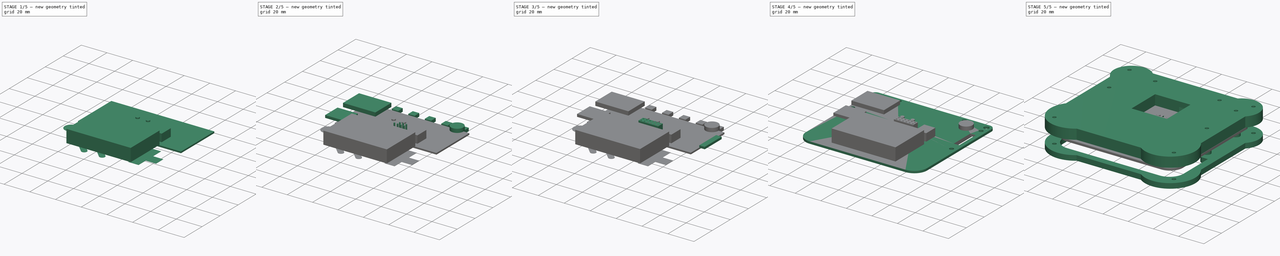
[diagram: build sequence overview — one tinted view per stage of 5, left to right]
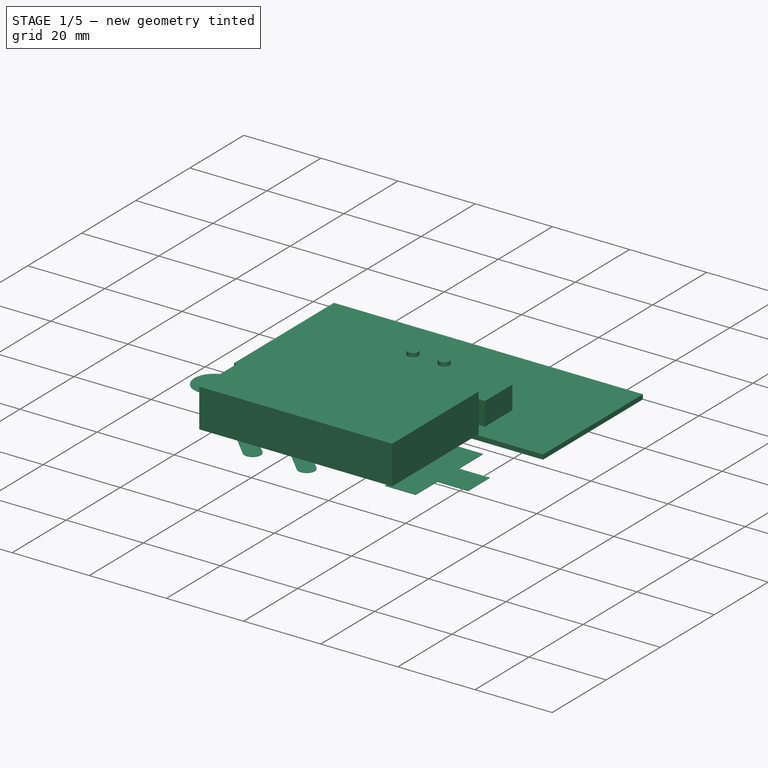
[diagram: stage 1 of 5 — iso view after this stage's code; geometry added in this stage tinted green]
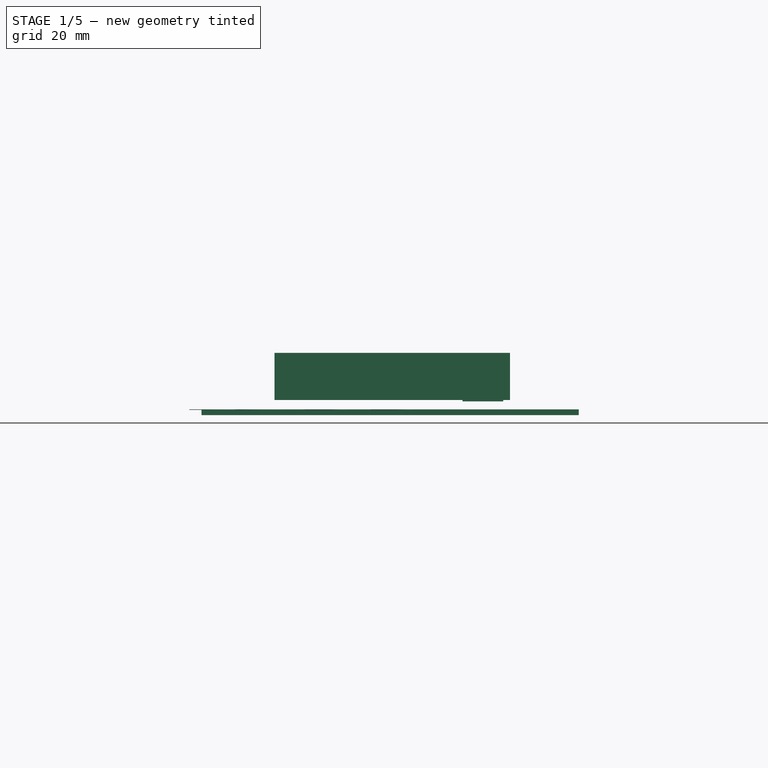
[diagram: stage 1 of 5 — front view after this stage's code; geometry added in this stage tinted green]
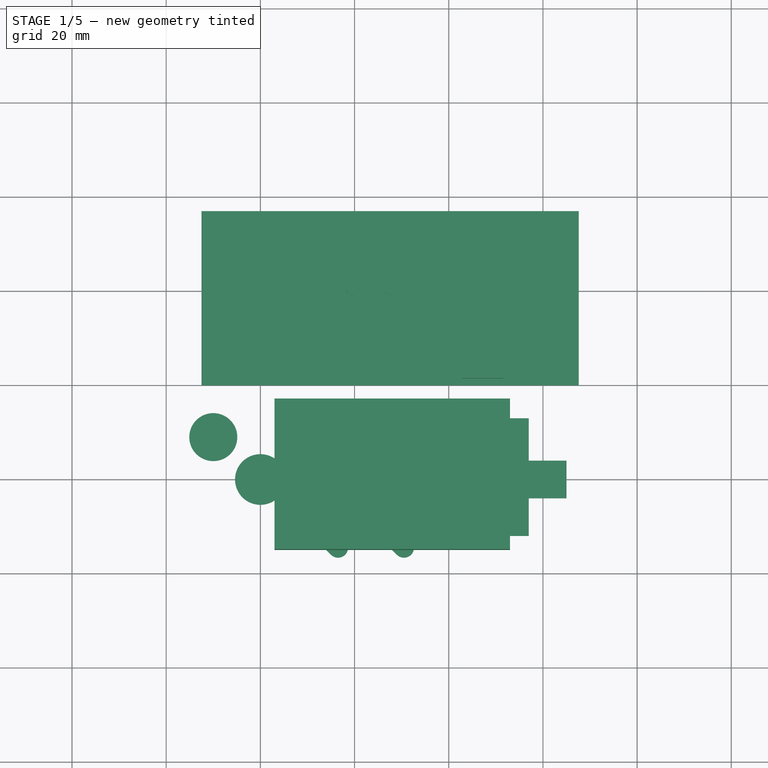
[diagram: stage 1 of 5 — top view after this stage's code; geometry added in this stage tinted green]
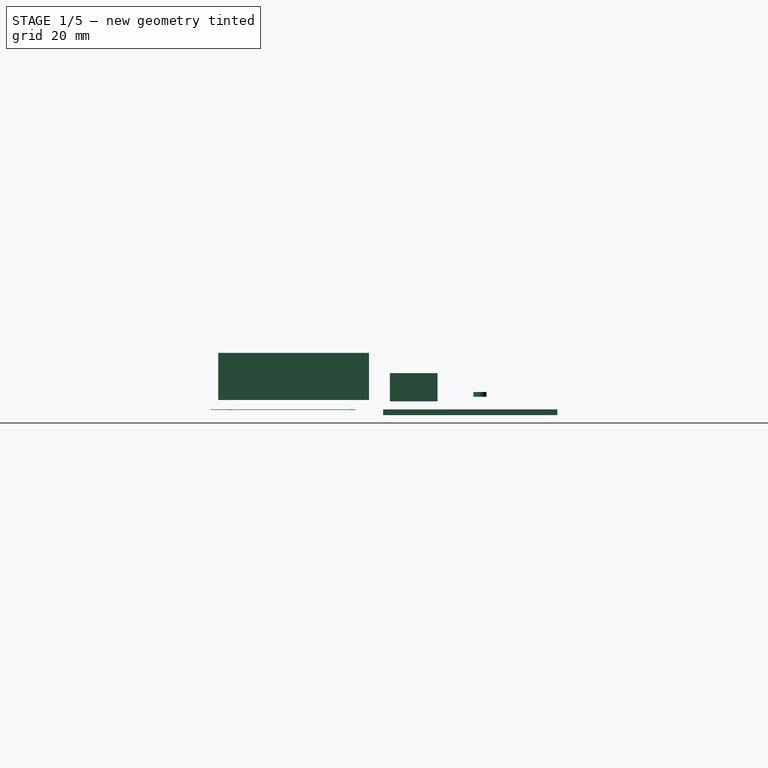
[diagram: stage 1 of 5 — right view after this stage's code; geometry added in this stage tinted green]
FCSTD DOCUMENT  (FreeCAD 0.16R6710 (Git))
Label: caseLaserCut
License: All rights reserved
LicenseURL: http://en.wikipedia.org/wiki/All_rights_reserved
objects: Part::Extrusion×43, Part::Feature×32, Sketcher::SketchObject×14, App::DocumentObjectGroup×5, Part::MultiFuse×4, Part::Compound×3, Part::Cut×2, Part::FeaturePython×1, Part::Box×1
note: 100 computed .brp shape members not serialized (recipe doc carries the construction recipe); baked Part::Feature solids carry a one-line shape summary decoded from their .brp

FEATURE [Part::Extrusion] Extrude_Wire006  label="Start_Extrude"
  Base = -> Wire006
  Dir = (0,0,-0.1)
  Solid = true
FEATURE [Part::Extrusion] Extrude_Wire007  label="Select_Extrude"
  Base = -> Wire007
  Dir = (0,0,-0.1)
  Solid = true
FEATURE [Part::Extrusion] Extrude_Circle019  label="abtn_Extrude"
  Base = -> Circle019
  Dir = (0,0,-0.1)
  Solid = true
FEATURE [Part::Extrusion] Extrude_Circle020  label="bbtn_Extrude"
  Base = -> Circle020
  Dir = (0,0,-0.1)
  Solid = true
FEATURE [Sketcher::SketchObject] Sketch004
  sketch-geometry (13):
    g0: LineSegment StartX=77 StartY=24 StartZ=0 EndX=85 EndY=24 EndZ=0
    g1: LineSegment StartX=85 StartY=24 StartZ=0 EndX=85 EndY=16 EndZ=0
    g2: LineSegment StartX=85 StartY=16 StartZ=0 EndX=77 EndY=16 EndZ=0
    g3: LineSegment StartX=77 StartY=16 StartZ=0 EndX=77 EndY=8 EndZ=0
    g4: LineSegment StartX=77 StartY=8 StartZ=0 EndX=69 EndY=8 EndZ=0
    g5: LineSegment StartX=69 StartY=8 StartZ=0 EndX=69 EndY=16 EndZ=0
    g6: LineSegment StartX=69 StartY=16 StartZ=0 EndX=61 EndY=16 EndZ=0
    g7: LineSegment StartX=61 StartY=16 StartZ=0 EndX=61 EndY=24 EndZ=0
    g8: LineSegment StartX=61 StartY=24 StartZ=0 EndX=69 EndY=24 EndZ=0
    g9: LineSegment StartX=69 StartY=24 StartZ=0 EndX=69 EndY=33 EndZ=0
    g10: LineSegment StartX=69 StartY=33 StartZ=0 EndX=77 EndY=33 EndZ=0
    g11: LineSegment StartX=77 StartY=33 StartZ=0 EndX=77 EndY=24.1 EndZ=0
    g12: LineSegment StartX=77 StartY=24 StartZ=0 EndX=77 EndY=24.1 EndZ=0
  constraints (4):
    c: DistanceX(g0) = 77
    c: DistanceY(g0) = 24
    c: Coincident(g0,g12)
    c: Coincident(g11,g12)
FEATURE [Part::Extrusion] Extrude_Sketch004  label="dpad001"
  Base = -> Sketch004
  Dir = (0,0,-0.1)
  Solid = true
FEATURE [Part::Compound] Compound  label="CapButtons"
  Links = -> [Extrude_Sketch004,Extrude_Wire006,Extrude_Circle019,Extrude_Wire007,Extrude_Circle020,Fusion001001]
FEATURE [Part::Extrusion] Extrude_Wire002  label="batConOutline_Extrude"
  Base = -> Wire002
  Dir = (0,0,6)
  Solid = true
FEATURE [Part::Extrusion] Extrude_Wire005  label="lcd_Extrude"
  Base = -> Wire005
  Dir = (0,0,-1.2)
  Solid = true
FEATURE [Part::Extrusion] Extrude_Sketch  label="Buttons_Extrude"
  Base = -> Sketch
  Dir = (0,0,1)
  Solid = true
FEATURE [Sketcher::SketchObject] Sketch005
  ExternalGeometry = -> [Extrude_Sketch]
  Placement = pos=(0,0,2.7) rot=(0,0,1;0rad)
  Support = -> Extrude_Sketch [Face6]
  sketch-geometry (7):
    g0: Circle CenterX=39.4787 CenterY=60.5688 CenterZ=0 NormalX=0 NormalY=0 NormalZ=1 Radius=1.38631
    g1: Circle CenterX=47.5742 CenterY=60.5688 CenterZ=0 NormalX=0 NormalY=0 NormalZ=1 Radius=1.38631
    g2: LineSegment [constr] StartX=42.0765 StartY=63.1395 StartZ=0 EndX=39.4787 EndY=60.5688 EndZ=0
    g3: LineSegment [constr] StartX=39.4787 StartY=60.5688 StartZ=0 EndX=36.8809 EndY=57.9981 EndZ=0
    g4: LineSegment [constr] StartX=39.4787 StartY=60.5688 StartZ=0 EndX=36.8809 EndY=63.1395 EndZ=0
    g5: LineSegment [constr] StartX=44.9764 StartY=63.1395 StartZ=0 EndX=47.5742 EndY=60.5688 EndZ=0
    g6: LineSegment [constr] StartX=47.5742 StartY=60.5688 StartZ=0 EndX=50.172 EndY=63.1395 EndZ=0
  constraints (15):
    c: Coincident(g2,g-4)
    c: Coincident(g3,g0)
    c: Coincident(g3,g-5)
    c: Coincident(g4,g0)
    c: Coincident(g4,g-4)
    c: Coincident(g5,g-3)
    c: Coincident(g5,g1)
    c: Coincident(g6,g1)
    c: Coincident(g6,g-3)
    c: Equal(g6,g5)
    c: Equal(g5,g2)
    c: Equal(g2,g4)
    c: Equal(g4,g3)
    c: Coincident(g0,g2)
    c: Equal(g0,g1)
FEATURE [Part::Extrusion] Extrude_Sketch005  label="Sketch005_Extrude"
  Base = -> Sketch005
  Dir = (0,0,1)
  Solid = true
FEATURE [Part::Box] Box  label="Battery"
  Height = 10
  Length = 50
  Placement = pos=(23,5,2) rot=(0,0,1;0rad)
  Width = 32
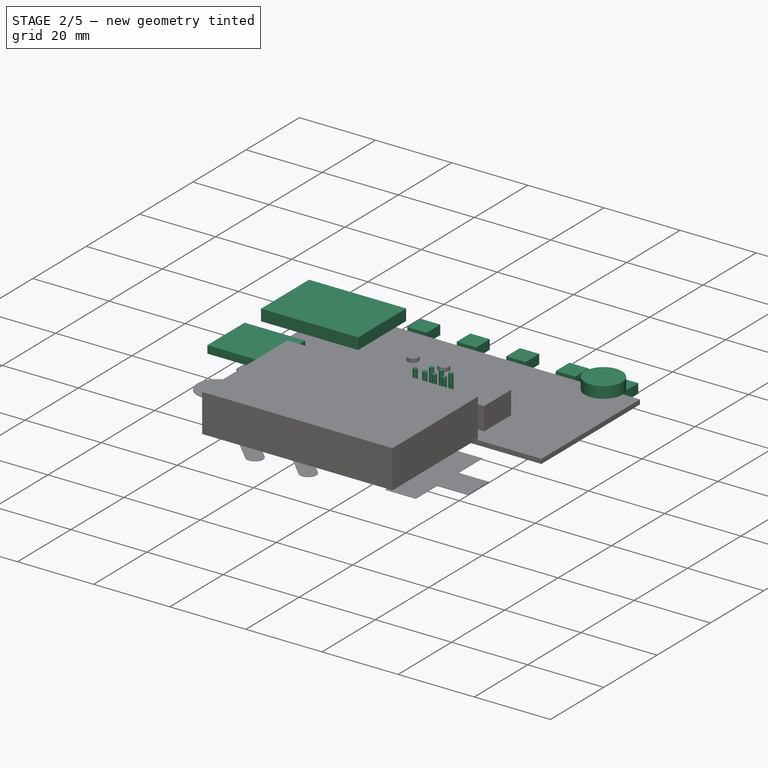
[diagram: stage 2 of 5 — iso view after this stage's code; geometry added in this stage tinted green]
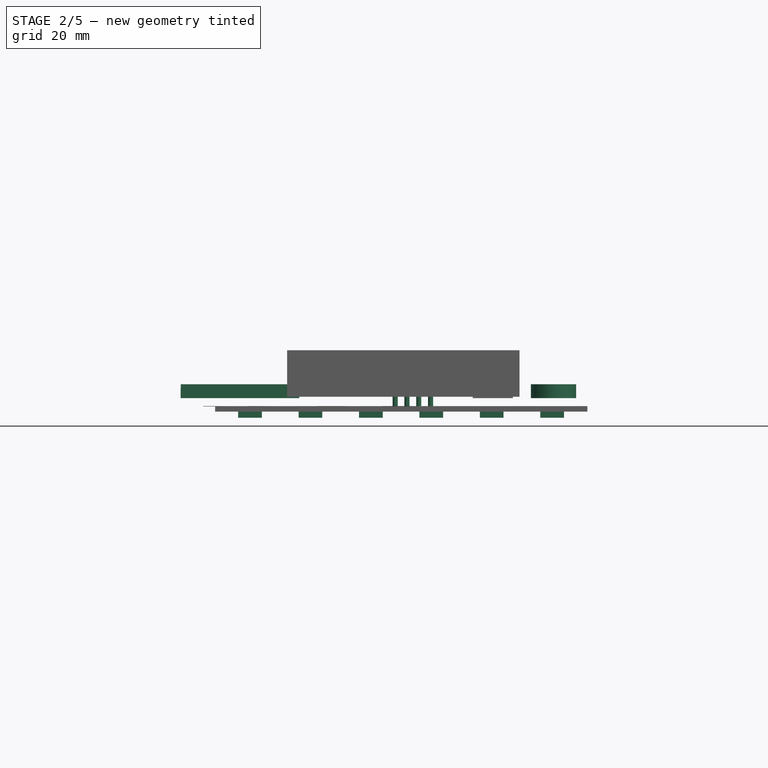
[diagram: stage 2 of 5 — front view after this stage's code; geometry added in this stage tinted green]
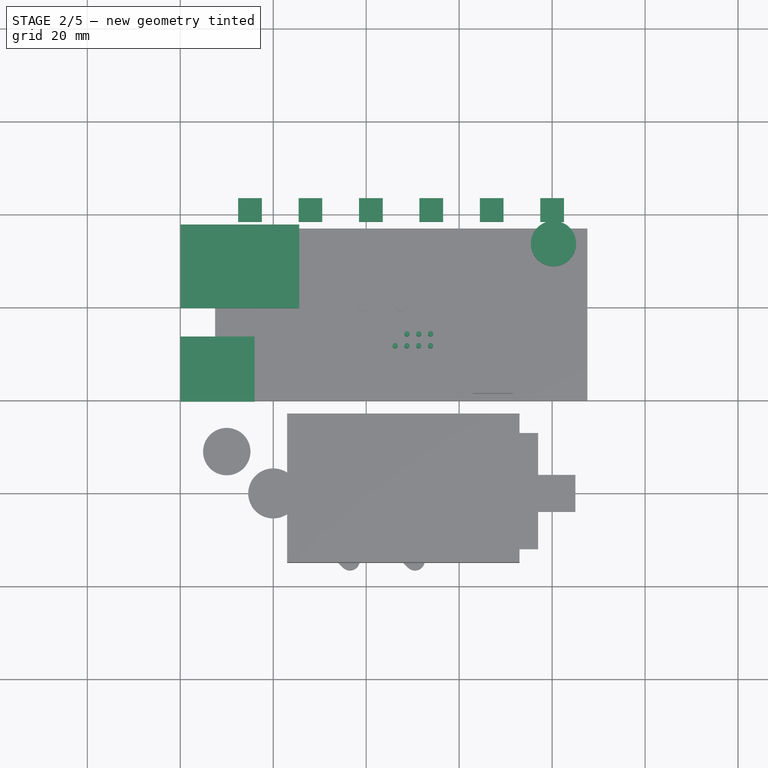
[diagram: stage 2 of 5 — top view after this stage's code; geometry added in this stage tinted green]
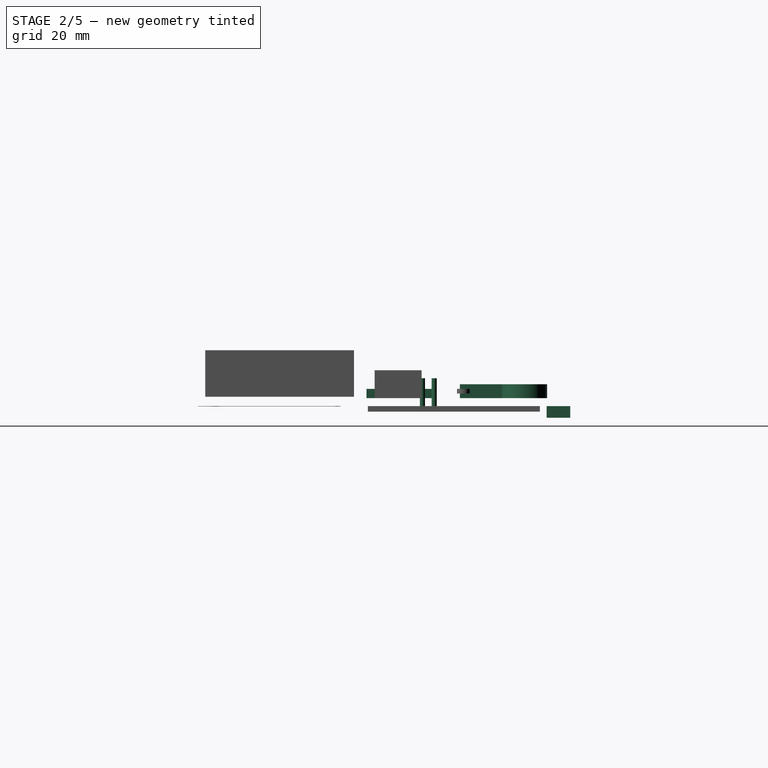
[diagram: stage 2 of 5 — right view after this stage's code; geometry added in this stage tinted green]
FEATURE [Part::Extrusion] Extrude_Circle012  label="Circle012_Extrude"
  Base = -> Circle012
  Dir = (0,0,6)
  Solid = true
FEATURE [Part::Extrusion] Extrude_Circle013  label="Circle013_Extrude"
  Base = -> Circle013
  Dir = (0,0,6)
  Solid = true
FEATURE [Part::Extrusion] Extrude_Circle014  label="Circle014_Extrude"
  Base = -> Circle014
  Dir = (0,0,6)
  Solid = true
FEATURE [Part::Extrusion] Extrude_Circle015  label="Circle015_Extrude"
  Base = -> Circle015
  Dir = (0,0,6)
  Solid = true
FEATURE [Part::Extrusion] Extrude_Circle016  label="Circle016_Extrude"
  Base = -> Circle016
  Dir = (0,0,6)
  Solid = true
FEATURE [Part::Extrusion] Extrude_Circle017  label="Circle017_Extrude"
  Base = -> Circle017
  Dir = (0,0,6)
  Solid = true
FEATURE [Part::Extrusion] Extrude_Circle018  label="Circle018_Extrude"
  Base = -> Circle018
  Dir = (0,0,6)
  Solid = true
FEATURE [Part::Extrusion] Extrude_Sketch002  label="sdouline_Extrude"
  Base = -> Sketch002
  Dir = (0,0,2)
  Solid = true
FEATURE [Part::Extrusion] Extrude_Wire003  label="ESP32Outline_Extrude"
  Base = -> Wire003
  Dir = (0,0,3)
  Solid = true
FEATURE [Part::Extrusion] Extrude_Polyline1548  label="VibratorOutline_Extrude"
  Base = -> Polyline1548
  Dir = (0,0,3)
  Solid = true
FEATURE [Part::Extrusion] Extrude_Sketch003  label="ledsOutline_Extrude"
  Base = -> Sketch003
  Dir = (0,0,-2.5)
  Solid = true
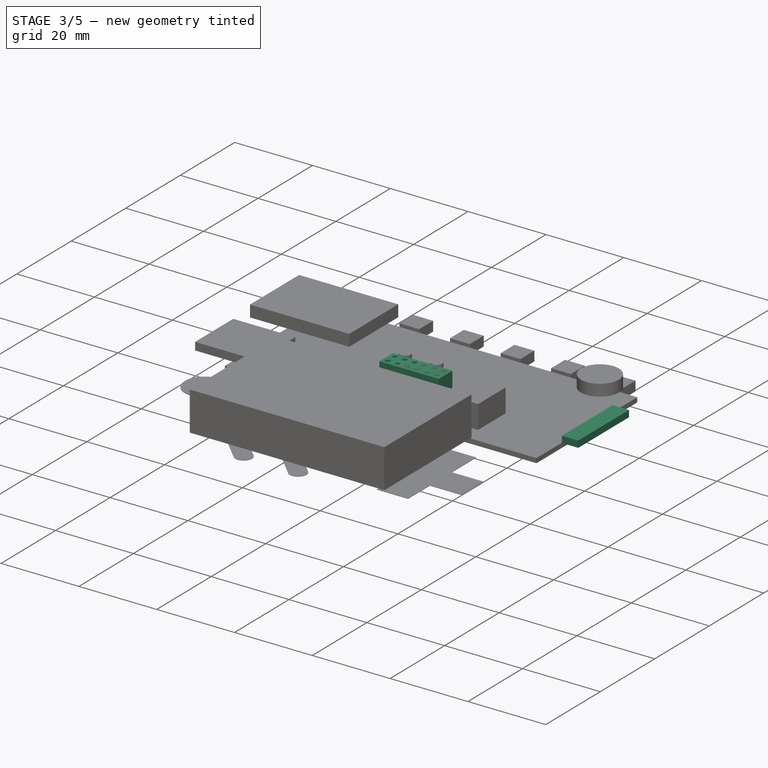
[diagram: stage 3 of 5 — iso view after this stage's code; geometry added in this stage tinted green]
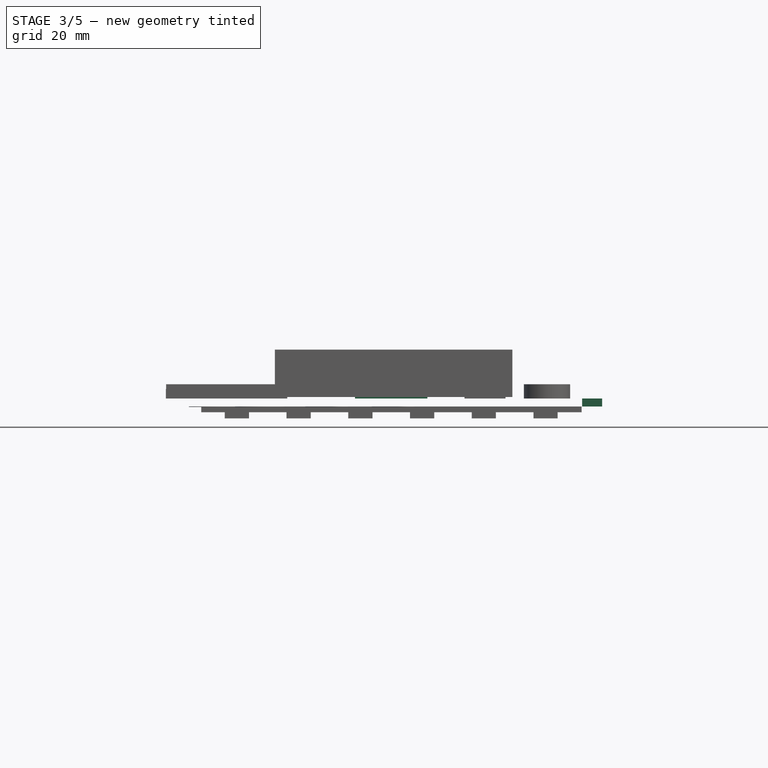
[diagram: stage 3 of 5 — front view after this stage's code; geometry added in this stage tinted green]
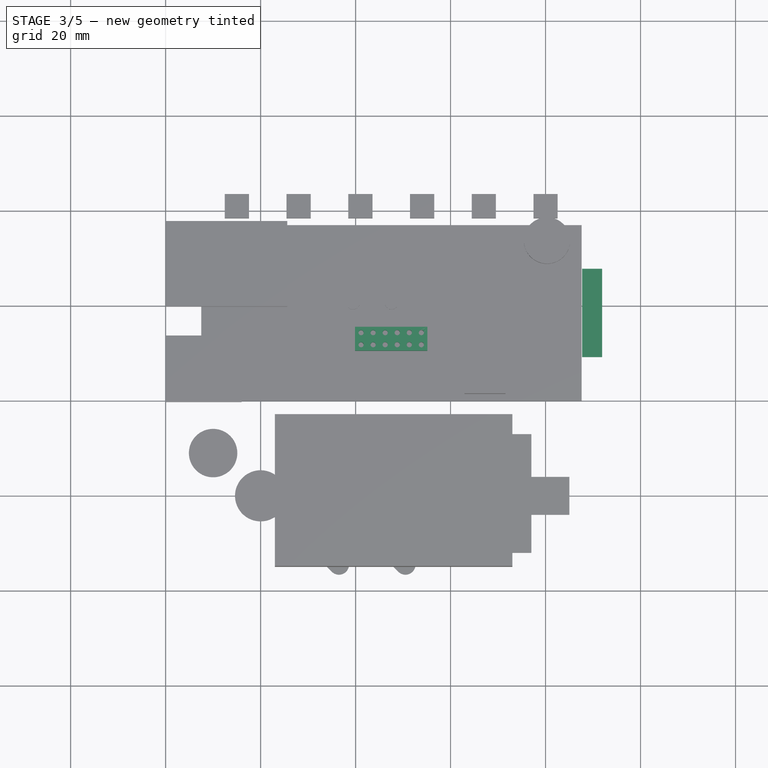
[diagram: stage 3 of 5 — top view after this stage's code; geometry added in this stage tinted green]
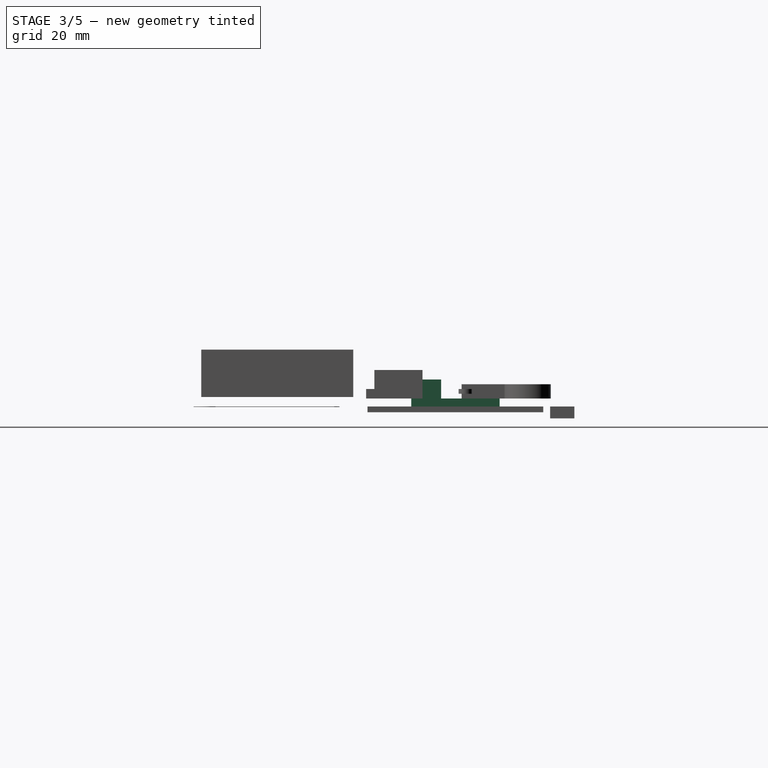
[diagram: stage 3 of 5 — right view after this stage's code; geometry added in this stage tinted green]
FEATURE [Part::Extrusion] Extrude_Circle007  label="Circle007_Extrude"
  Base = -> Circle007
  Dir = (0,0,6)
  Solid = true
FEATURE [Part::Extrusion] Extrude_Circle008  label="Circle008_Extrude"
  Base = -> Circle008
  Dir = (0,0,6)
  Solid = true
FEATURE [Part::Extrusion] Extrude_Circle009  label="Circle009_Extrude"
  Base = -> Circle009
  Dir = (0,0,6)
  Solid = true
FEATURE [Part::Extrusion] Extrude_Circle010  label="Circle010_Extrude"
  Base = -> Circle010
  Dir = (0,0,6)
  Solid = true
FEATURE [Part::Extrusion] Extrude_Circle011  label="Circle011_Extrude"
  Base = -> Circle011
  Dir = (0,0,6)
  Solid = true
FEATURE [Part::MultiFuse] Fusion001  label="AuxConn"
  Shapes = -> [Extrude_Circle007,Extrude_Circle015,Extrude_Circle010,Extrude_Circle012,Extrude_Circle013,Extrude_Circle017,Extrude_Circle018,Extrude_Circle008,Extrude_Circle011,Extrude_Circle009,Extrude_Circle016,Extrude_Circle014]
FEATURE [Part::Feature] Wire
  shape: bbox 4.2 x 18.6 x 2e-07 mm, 0 faces, 0 solids (baked)
FEATURE [Part::Extrusion] Extrude_Wire  label="lcdWires"
  Base = -> Wire
  Dir = (0,0,1.7)
  Solid = true
FEATURE [Part::Extrusion] Extrude_Sketch001  label="auxConnAoutline_Extrude"
  Base = -> Sketch001
  Dir = (0,0,4)
  Solid = true
FEATURE [Part::FeaturePython] Clone  label="Clone of AuxConn"  # Draft clone (typed FeaturePython)
  Objects = -> [Fusion001]
  Scale = (1,1,1)
FEATURE [Part::Cut] Cut001  label="AuxConnector"
  Base = -> Extrude_Sketch001
  Tool = -> Clone
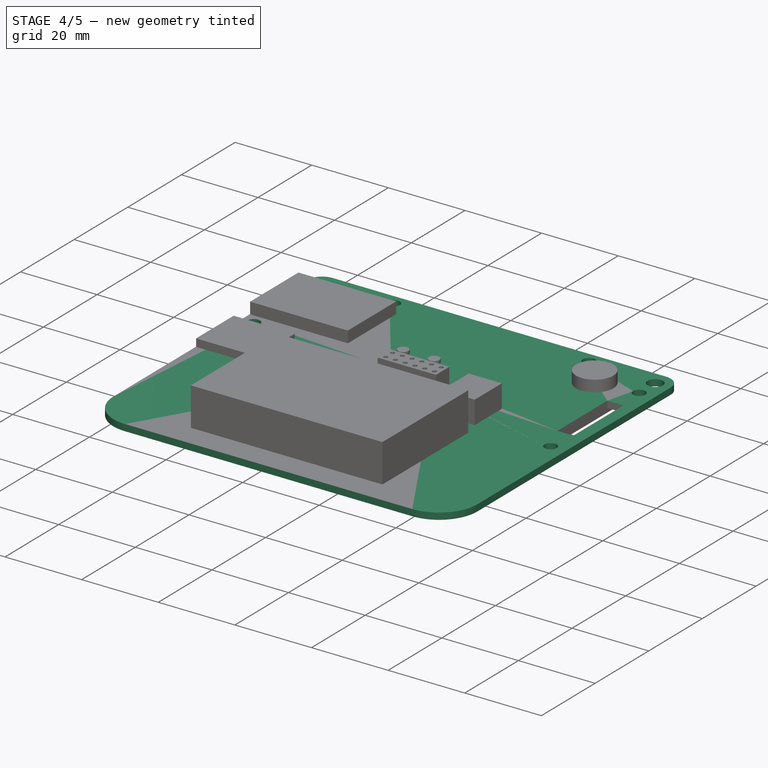
[diagram: stage 4 of 5 — iso view after this stage's code; geometry added in this stage tinted green]
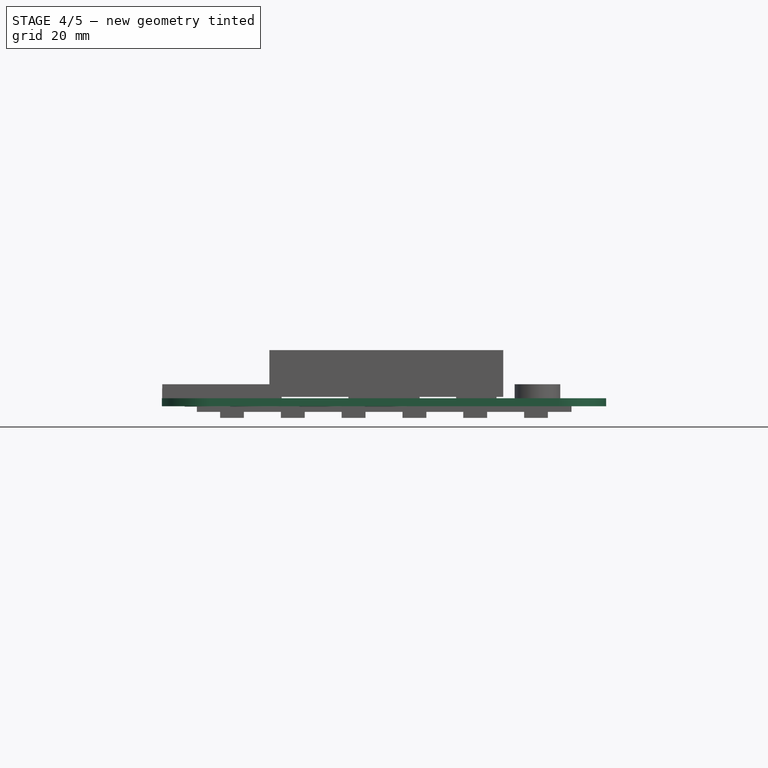
[diagram: stage 4 of 5 — front view after this stage's code; geometry added in this stage tinted green]
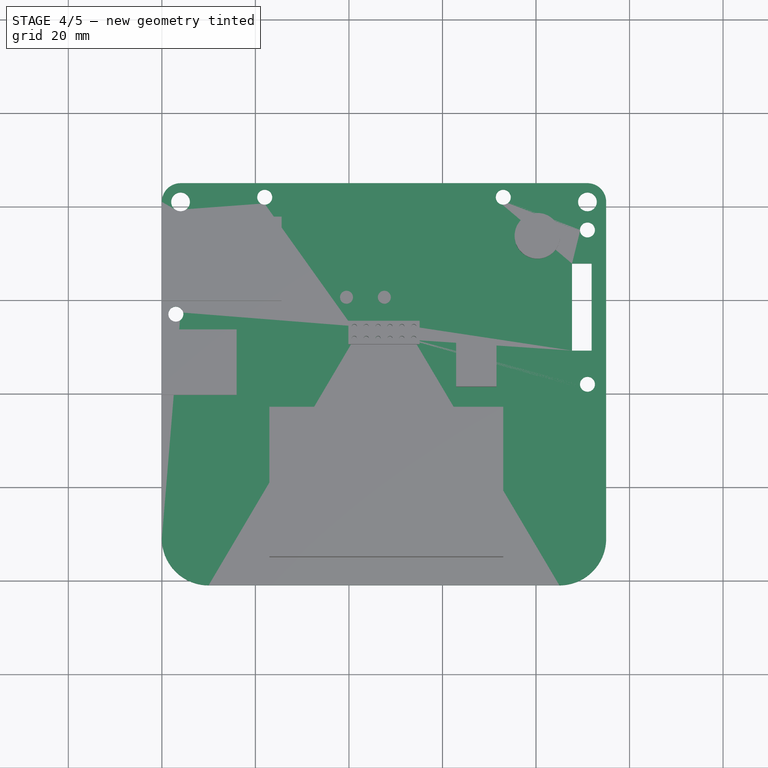
[diagram: stage 4 of 5 — top view after this stage's code; geometry added in this stage tinted green]
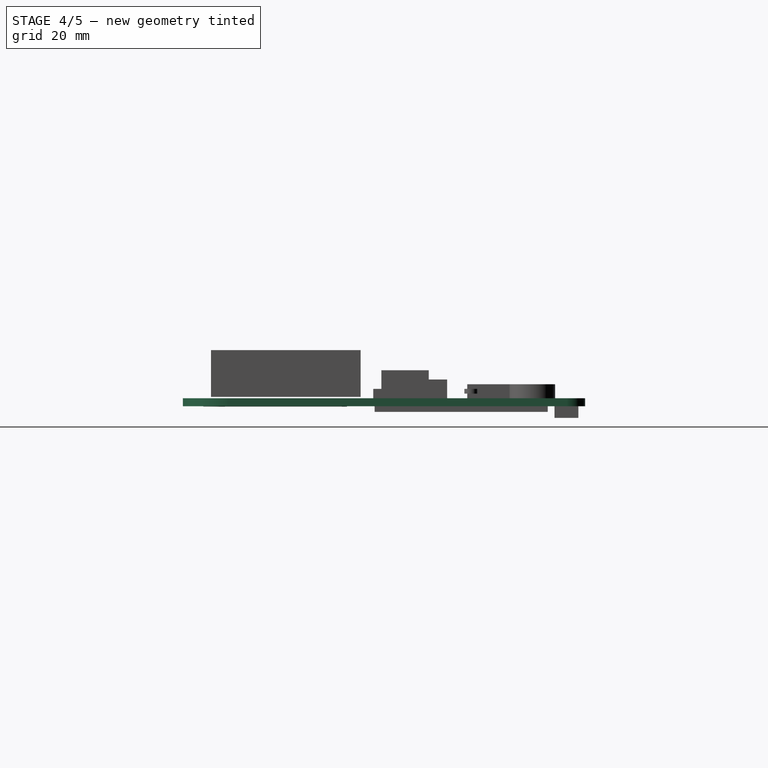
[diagram: stage 4 of 5 — right view after this stage's code; geometry added in this stage tinted green]
FEATURE [Part::Feature] Circle
  shape: bbox 4 x 4 x 2e-07 mm, 0 faces, 0 solids (baked)
FEATURE [Part::Feature] Circle001
  shape: bbox 4 x 4 x 2e-07 mm, 0 faces, 0 solids (baked)
FEATURE [Part::Feature] Circle002 .. Circle006  x5 (patterned run collapsed; names and placements below)
  shape: bbox 3.2 x 3.2 x 2e-07 mm, 0 faces, 0 solids (baked)
FEATURE [Part::Feature] Circle007 .. Circle018  x12 (patterned run collapsed; names and placements below)
  shape: bbox 1.1 x 1.1 x 2e-07 mm, 0 faces, 0 solids (baked)
FEATURE [Part::Feature] Face
  shape: bbox 95 x 86 x 2e-07 mm, 1 faces, 0 solids (baked)
FEATURE [Part::Extrusion] Extrude_Face  label="pcbOutline"
  Base = -> Face
  Dir = (0,0,1.7)
  Solid = true
FEATURE [Part::Extrusion] Extrude_Circle  label="Circle_Extrude"
  Base = -> Circle
  Dir = (0,0,1.7)
  Solid = true
FEATURE [Part::Extrusion] Extrude_Circle001  label="Circle001_Extrude"
  Base = -> Circle001
  Dir = (0,0,1.7)
  Solid = true
FEATURE [Part::Extrusion] Extrude_Circle002  label="Circle002_Extrude"
  Base = -> Circle002
  Dir = (0,0,1.7)
  Solid = true
FEATURE [Part::Extrusion] Extrude_Circle003  label="Circle003_Extrude"
  Base = -> Circle003
  Dir = (0,0,1.7)
  Solid = true
FEATURE [Part::Extrusion] Extrude_Circle004  label="Circle004_Extrude"
  Base = -> Circle004
  Dir = (0,0,1.7)
  Solid = true
FEATURE [Part::Extrusion] Extrude_Circle005  label="Circle005_Extrude"
  Base = -> Circle005
  Dir = (0,0,1.7)
  Solid = true
FEATURE [Part::Extrusion] Extrude_Circle006  label="Circle006_Extrude"
  Base = -> Circle006
  Dir = (0,0,1.7)
  Solid = true
FEATURE [Part::MultiFuse] Fusion  label="Holes"
  Shapes = -> [Extrude_Circle,Extrude_Circle002,Extrude_Circle001,Extrude_Circle005,Extrude_Circle003,Extrude_Circle004,Extrude_Circle006]
FEATURE [Part::Feature] Wire001  label="BatteryArea"
  Placement = pos=(0,0,1.7) rot=(0,0,1;0rad)
  shape: bbox 58.5 x 39.7 x 2e-07 mm, 0 faces, 0 solids (baked)
FEATURE [Part::Feature] Wire002  label="batConOutline"
  Placement = pos=(0,0,1.7) rot=(0,0,1;0rad)
  shape: bbox 8.636 x 10.13 x 2e-07 mm, 0 faces, 0 solids (baked)
FEATURE [Part::Feature] Wire003  label="ESP32Outline"
  Placement = pos=(0,0,1.7) rot=(0,0,1;0rad)
  shape: bbox 25.5 x 18 x 2e-07 mm, 0 faces, 0 solids (baked)
FEATURE [Part::Feature] Polyline1548  label="VibratorOutline"
  Placement = pos=(0,0,1.7) rot=(0,0,1;0rad)
  shape: bbox 9.751 x 9.751 x 2e-07 mm, 0 faces, 0 solids (baked)
FEATURE [Sketcher::SketchObject] Sketch  label="Buttons"
  Placement = pos=(0,0,1.7) rot=(0,0,1;0rad)
  sketch-geometry (9):
    g0: LineSegment StartX=42.0765 StartY=63.1395 StartZ=0 EndX=36.8809 EndY=63.1395 EndZ=0
    g1: LineSegment StartX=36.8809 StartY=63.1395 StartZ=0 EndX=36.8809 EndY=57.9981 EndZ=0
    g2: LineSegment StartX=36.8809 StartY=57.9981 StartZ=0 EndX=42.0765 EndY=57.9981 EndZ=0
    g3: LineSegment StartX=42.0765 StartY=57.9981 StartZ=0 EndX=42.0765 EndY=63.1395 EndZ=0
    g4: LineSegment StartX=44.9764 StartY=63.1395 StartZ=0 EndX=50.172 EndY=63.1395 EndZ=0
    g5: LineSegment StartX=50.172 StartY=63.1395 StartZ=0 EndX=50.172 EndY=57.9981 EndZ=0
    g6: LineSegment StartX=50.172 StartY=57.9981 StartZ=0 EndX=44.9764 EndY=57.9981 EndZ=0
    g7: LineSegment StartX=44.9764 StartY=57.9981 StartZ=0 EndX=44.9764 EndY=63.1395 EndZ=0
    g8: LineSegment [constr] StartX=42.0765 StartY=63.1395 StartZ=0 EndX=44.9764 EndY=63.1395 EndZ=0
  constraints (21):
    c: Coincident(g0,g1)
    c: Coincident(g1,g2)
    c: Coincident(g2,g3)
    c: Coincident(g3,g0)
    c: Horizontal(g0)
    c: Horizontal(g2)
    c: Vertical(g1)
    c: Vertical(g3)
    c: Coincident(g4,g5)
    c: Coincident(g5,g6)
    c: Coincident(g6,g7)
    c: Coincident(g7,g4)
    c: Horizontal(g4)
    c: Horizontal(g6)
    c: Vertical(g5)
    c: Vertical(g7)
    c: Equal(g0,g4)
    c: Equal(g3,g7)
    c: Coincident(g4,g8)
    c: Coincident(g0,g8)
    c: Horizontal(g8)
FEATURE [Sketcher::SketchObject] Sketch001  label="auxConnAoutline"
  Placement = pos=(0,0,1.7) rot=(1,0,0;3.14159rad)
  sketch-geometry (7):
    g0: LineSegment StartX=55.125 StartY=-50.5 StartZ=0 EndX=39.875 EndY=-50.5 EndZ=0
    g1: LineSegment StartX=39.875 StartY=-50.5 StartZ=0 EndX=39.875 EndY=-55.5 EndZ=0
    g2: LineSegment StartX=39.875 StartY=-55.5 StartZ=0 EndX=55.125 EndY=-55.5 EndZ=0
    g3: LineSegment StartX=55.125 StartY=-55.5 StartZ=0 EndX=55.125 EndY=-50.5 EndZ=0
    g4: LineSegment [constr] StartX=41.15 StartY=-51.73 StartZ=0 EndX=39.875 EndY=-50.5 EndZ=0
    g5: LineSegment [constr] StartX=41.15 StartY=-54.27 StartZ=0 EndX=39.875 EndY=-55.5 EndZ=0
    g6: LineSegment [constr] StartX=53.85 StartY=-51.73 StartZ=0 EndX=55.125 EndY=-50.5 EndZ=0
  constraints (15):
    c: Coincident(g0,g1)
    c: Coincident(g1,g2)
    c: Coincident(g2,g3)
    c: Coincident(g3,g0)
    c: Horizontal(g0)
    c: Horizontal(g2)
    c: Vertical(g1)
    c: Vertical(g3)
    c: Coincident(g4,g0)
    c: Coincident(g5,g1)
    c: Coincident(g6,g0)
    c: Equal(g6,g4)
    c: Equal(g4,g5)
    c: Distance(g0) = 15.25
    c: Distance(g3) = 5
FEATURE [Sketcher::SketchObject] Sketch002  label="sdouline"
  Placement = pos=(0,0,1.7) rot=(0,0,1;0rad)
  sketch-geometry (4):
    g0: LineSegment StartX=16.0011 StartY=53.7008 StartZ=0 EndX=0.063418 EndY=53.7008 EndZ=0
    g1: LineSegment StartX=0.063418 StartY=53.7008 StartZ=0 EndX=0.063418 EndY=39.6988 EndZ=0
    g2: LineSegment StartX=0.063418 StartY=39.6988 StartZ=0 EndX=16.0011 EndY=39.6988 EndZ=0
    g3: LineSegment StartX=16.0011 StartY=39.6988 StartZ=0 EndX=16.0011 EndY=53.7008 EndZ=0
  constraints (8):
    c: Coincident(g0,g1)
    c: Coincident(g1,g2)
    c: Coincident(g2,g3)
    c: Coincident(g3,g0)
    c: Horizontal(g0)
    c: Horizontal(g2)
    c: Vertical(g1)
    c: Vertical(g3)
FEATURE [Part::Feature] Wire005  label="lcd"
  shape: bbox 80.1 x 37 x 2e-07 mm, 0 faces, 0 solids (baked)
FEATURE [Part::Feature] Wire006  label="Start"
  shape: bbox 9.243 x 9.243 x 2e-07 mm, 0 faces, 0 solids (baked)
FEATURE [Part::Feature] Wire007  label="Select"
  shape: bbox 9.243 x 9.243 x 2e-07 mm, 0 faces, 0 solids (baked)
FEATURE [Part::Feature] Circle019  label="abtn"
  shape: bbox 10.2 x 10.2 x 2e-07 mm, 0 faces, 0 solids (baked)
FEATURE [Part::Feature] Circle020  label="bbtn"
  shape: bbox 10.77 x 10.77 x 2e-07 mm, 0 faces, 0 solids (baked)
FEATURE [Sketcher::SketchObject] Sketch003  label="ledsOutline"
  sketch-geometry (29):
    g0: LineSegment StartX=12.45 StartY=83.55 StartZ=0 EndX=17.55 EndY=83.55 EndZ=0
    g1: LineSegment StartX=17.55 StartY=83.55 StartZ=0 EndX=17.55 EndY=78.45 EndZ=0
    g2: LineSegment StartX=17.55 StartY=78.45 StartZ=0 EndX=12.45 EndY=78.45 EndZ=0
    g3: LineSegment StartX=12.45 StartY=78.45 StartZ=0 EndX=12.45 EndY=83.55 EndZ=0
    g4: LineSegment StartX=25.45 StartY=83.55 StartZ=0 EndX=30.55 EndY=83.55 EndZ=0
    g5: LineSegment StartX=30.55 StartY=83.55 StartZ=0 EndX=30.55 EndY=78.45 EndZ=0
    g6: LineSegment StartX=30.55 StartY=78.45 StartZ=0 EndX=25.45 EndY=78.45 EndZ=0
    g7: LineSegment StartX=25.45 StartY=78.45 StartZ=0 EndX=25.45 EndY=83.55 EndZ=0
    g8: LineSegment StartX=38.45 StartY=83.55 StartZ=0 EndX=43.55 EndY=83.55 EndZ=0
    g9: LineSegment StartX=43.55 StartY=83.55 StartZ=0 EndX=43.55 EndY=78.45 EndZ=0
    g10: LineSegment StartX=43.55 StartY=78.45 StartZ=0 EndX=38.45 EndY=78.45 EndZ=0
    g11: LineSegment StartX=38.45 StartY=78.45 StartZ=0 EndX=38.45 EndY=83.55 EndZ=0
    g12: LineSegment StartX=51.45 StartY=83.55 StartZ=0 EndX=56.55 EndY=83.55 EndZ=0
    g13: LineSegment StartX=56.55 StartY=83.55 StartZ=0 EndX=56.55 EndY=78.45 EndZ=0
    g14: LineSegment StartX=56.55 StartY=78.45 StartZ=0 EndX=51.45 EndY=78.45 EndZ=0
    g15: LineSegment StartX=51.45 StartY=78.45 StartZ=0 EndX=51.45 EndY=83.55 EndZ=0
    g16: LineSegment StartX=64.45 StartY=83.55 StartZ=0 EndX=69.55 EndY=83.55 EndZ=0
    g17: LineSegment StartX=69.55 StartY=83.55 StartZ=0 EndX=69.55 EndY=78.45 EndZ=0
    g18: LineSegment StartX=69.55 StartY=78.45 StartZ=0 EndX=64.45 EndY=78.45 EndZ=0
    g19: LineSegment StartX=64.45 StartY=78.45 StartZ=0 EndX=64.45 EndY=83.55 EndZ=0
    g20: LineSegment StartX=77.45 StartY=83.55 StartZ=0 EndX=82.55 EndY=83.55 EndZ=0
    g21: LineSegment StartX=82.55 StartY=83.55 StartZ=0 EndX=82.55 EndY=78.45 EndZ=0
    g22: LineSegment StartX=82.55 StartY=78.45 StartZ=0 EndX=77.45 EndY=78.45 EndZ=0
    g23: LineSegment StartX=77.45 StartY=78.45 StartZ=0 EndX=77.45 EndY=83.55 EndZ=0
    g24: LineSegment [constr] StartX=77.45 StartY=83.55 StartZ=0 EndX=69.55 EndY=83.55 EndZ=0
    g25: LineSegment [constr] StartX=64.45 StartY=83.55 StartZ=0 EndX=56.55 EndY=83.55 EndZ=0
    g26: LineSegment [constr] StartX=51.45 StartY=83.55 StartZ=0 EndX=43.55 EndY=83.55 EndZ=0
    g27: LineSegment [constr] StartX=38.45 StartY=83.55 StartZ=0 EndX=30.55 EndY=83.55 EndZ=0
    g28: LineSegment [constr] StartX=25.45 StartY=83.55 StartZ=0 EndX=17.55 EndY=83.55 EndZ=0
  constraints (82):
    c: Coincident(g0,g1)
    c: Coincident(g1,g2)
    c: Coincident(g2,g3)
    c: Coincident(g3,g0)
    c: Horizontal(g0)
    c: Horizontal(g2)
    c: Vertical(g1)
    c: Vertical(g3)
    c: Coincident(g4,g5)
    c: Coincident(g5,g6)
    c: Coincident(g6,g7)
    c: Coincident(g7,g4)
    c: Horizontal(g4)
    c: Horizontal(g6)
    c: Vertical(g5)
    c: Vertical(g7)
    c: Coincident(g8,g9)
    c: Coincident(g9,g10)
    c: Coincident(g10,g11)
    c: Coincident(g11,g8)
    c: Horizontal(g8)
    c: Horizontal(g10)
    c: Vertical(g9)
    c: Vertical(g11)
    c: Coincident(g12,g13)
    c: Coincident(g13,g14)
    c: Coincident(g14,g15)
    c: Coincident(g15,g12)
    c: Horizontal(g12)
    c: Horizontal(g14)
    c: Vertical(g13)
    c: Vertical(g15)
    c: Coincident(g16,g17)
    c: Coincident(g17,g18)
    c: Coincident(g18,g19)
    c: Coincident(g19,g16)
    c: Horizontal(g16)
    c: Horizontal(g18)
    c: Vertical(g17)
    c: Vertical(g19)
    c: Coincident(g20,g21)
    c: Coincident(g21,g22)
    c: Coincident(g22,g23)
    c: Coincident(g23,g20)
    c: Horizontal(g20)
    c: Horizontal(g22)
    c: Vertical(g21)
    c: Vertical(g23)
    c: Coincident(g24,g20)
    c: Coincident(g24,g16)
    c: Coincident(g25,g16)
    c: Coincident(g25,g12)
    c: Coincident(g26,g12)
    c: Coincident(g26,g8)
    c: Horizontal(g26)
    c: Coincident(g27,g8)
    c: Coincident(g27,g4)
    c: Horizontal(g27)
    c: Coincident(g28,g4)
    c: Coincident(g28,g0)
    c: Horizontal(g28)
    c: Horizontal(g24)
    c: Horizontal(g25)
    c: Equal(g20,g16)
    c: Equal(g16,g12)
    c: Equal(g12,g8)
    c: Equal(g8,g4)
    c: Equal(g4,g0)
    c: Equal(g21,g17)
    c: Equal(g17,g13)
    c: Equal(g13,g9)
    c: Equal(g9,g5)
    c: Equal(g5,g1)
    c: Equal(g24,g25)
    c: Equal(g25,g26)
    c: Equal(g26,g27)
    c: Equal(g27,g28)
    c: DistanceX(g0) = 12.45
    c: DistanceY(g0) = 83.55
    c: Equal(g3,g0)
    c: Distance(g0) = 5.1
    c: Distance(g24) = 7.9
FEATURE [Part::Feature] Fusion001001  label="btnNames"
  shape: bbox 46.55 x 23.5 x 2e-07 mm, 0 faces, 0 solids (baked)
FEATURE [Part::MultiFuse] Fusion001002
  Shapes = -> [Fusion,Fusion001,Extrude_Wire]
FEATURE [Part::Cut] Cut
  Base = -> Extrude_Face
  Tool = -> Fusion001002
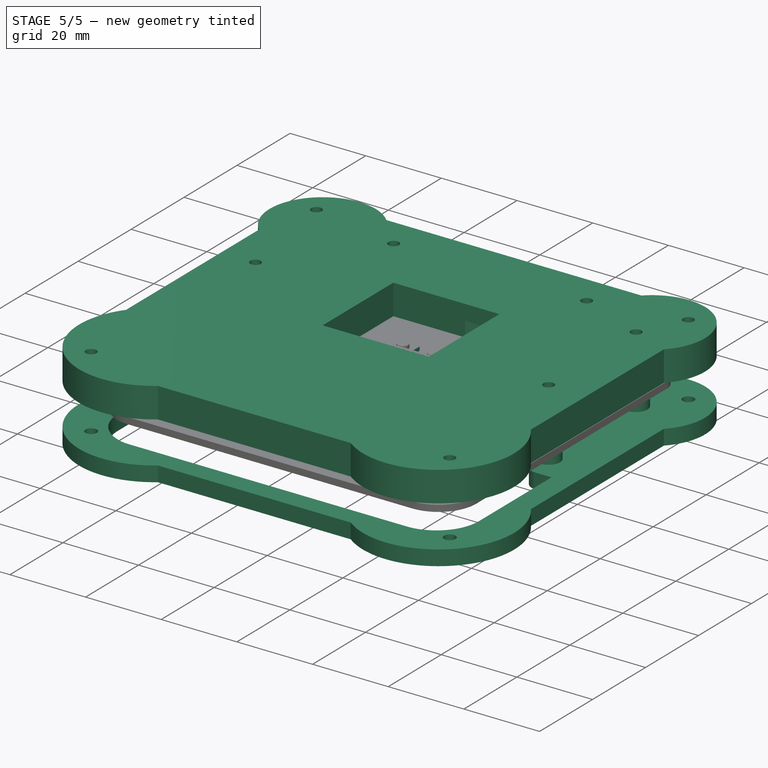
[diagram: stage 5 of 5 — iso view after this stage's code; geometry added in this stage tinted green]
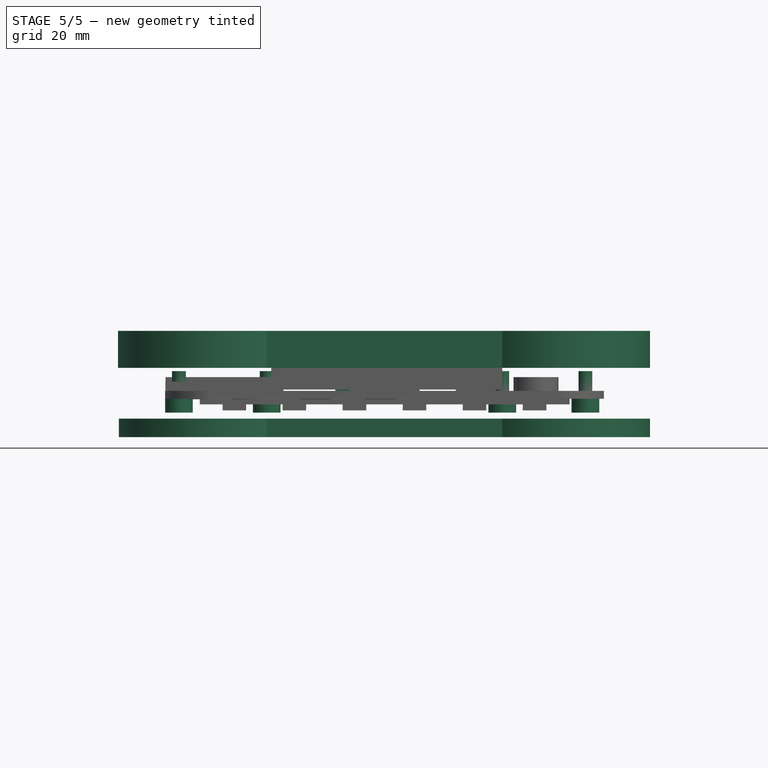
[diagram: stage 5 of 5 — front view after this stage's code; geometry added in this stage tinted green]
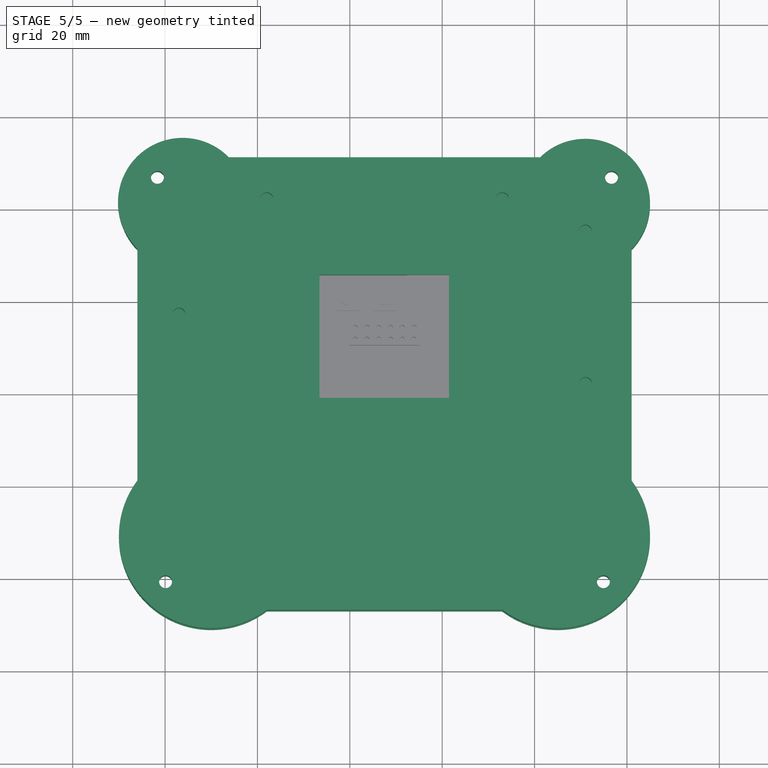
[diagram: stage 5 of 5 — top view after this stage's code; geometry added in this stage tinted green]
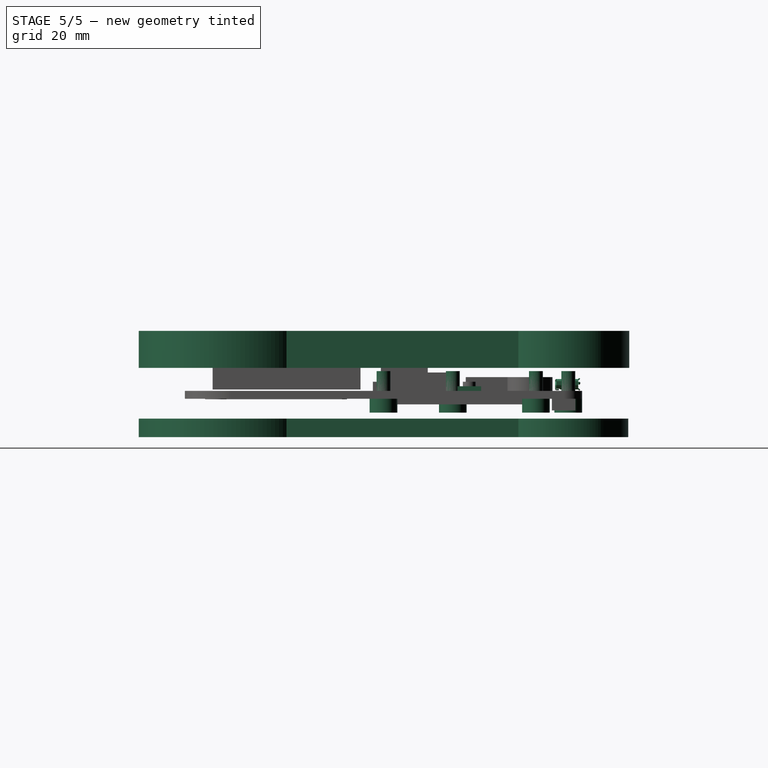
[diagram: stage 5 of 5 — right view after this stage's code; geometry added in this stage tinted green]
FEATURE [Part::Compound] Compound001  label="Badge2017"
  Links = -> [Wire001,Extrude_Wire005,Box,Extrude_Sketch,Extrude_Polyline1548,Extrude_Wire003,Extrude_Sketch002,Extrude_Wire002,Cut,Extrude_Sketch005,Extrude_Sketch003,Compound,Cut001]
FEATURE [Sketcher::SketchObject] Sketch006
  ExternalGeometry = -> [Compound001]
  Placement = pos=(0,0,3.7) rot=(0,0,1;0rad)
  Support = -> Compound001 [Face42]
  sketch-geometry (67):
    g0: ArcOfCircle CenterX=4.00009 CenterY=80.9999 CenterZ=0 NormalX=0 NormalY=0 NormalZ=1 Radius=14 StartAngle=0.795612 EndAngle=3.91678
    g1: ArcOfCircle CenterX=90.9999 CenterY=80.9999 CenterZ=0 NormalX=0 NormalY=0 NormalZ=1 Radius=14 StartAngle=5.508 EndAngle=8.62917
    g2: ArcOfCircle CenterX=84.9998 CenterY=9.00023 CenterZ=0 NormalX=0 NormalY=0 NormalZ=1 Radius=20 StartAngle=4.06891 EndAngle=6.92667
    g3: ArcOfCircle CenterX=10.0002 CenterY=9.00023 CenterZ=0 NormalX=0 NormalY=0 NormalZ=1 Radius=20 StartAngle=2.49811 EndAngle=5.35587
    g4: LineSegment StartX=21.9999 StartY=-7 StartZ=0 EndX=73.0001 EndY=-7 EndZ=0
    g5: LineSegment StartX=101 StartY=20.9999 StartZ=0 EndX=101 EndY=71.202 EndZ=0
    g6: LineSegment StartX=33.4302 StartY=65.5586 StartZ=0 EndX=33.4302 EndY=38.8919 EndZ=0
    g7: LineSegment StartX=33.4302 StartY=38.8919 StartZ=0 EndX=20.3974 EndY=38.8919 EndZ=0
    g8: LineSegment StartX=20.3974 StartY=38.8919 StartZ=0 EndX=20.3974 EndY=1.71576 EndZ=0
    g9: LineSegment StartX=20.3974 StartY=1.71576 StartZ=0 EndX=76.1619 EndY=1.71576 EndZ=0
    g10: LineSegment StartX=76.1619 StartY=1.71576 StartZ=0 EndX=76.1619 EndY=40.1788 EndZ=0
    g11: LineSegment StartX=76.1619 StartY=40.1788 StartZ=0 EndX=87.3453 EndY=40.1788 EndZ=0
    g12: Circle CenterX=4.00009 CenterY=80.9999 CenterZ=0 NormalX=0 NormalY=0 NormalZ=1 Radius=1.9
    g13: Circle CenterX=22 CenterY=82 CenterZ=0 NormalX=0 NormalY=0 NormalZ=1 Radius=1.4
    g14: Circle CenterX=73 CenterY=82 CenterZ=0 NormalX=0 NormalY=0 NormalZ=1 Radius=1.4
    g15: Circle CenterX=90.9999 CenterY=80.9999 CenterZ=0 NormalX=0 NormalY=0 NormalZ=1 Radius=1.9
    g16: Circle CenterX=91 CenterY=75 CenterZ=0 NormalX=0 NormalY=0 NormalZ=1 Radius=1.4
    g17: Circle CenterX=91 CenterY=42 CenterZ=0 NormalX=0 NormalY=0 NormalZ=1 Radius=1.4
    g18: Circle CenterX=3 CenterY=57 CenterZ=0 NormalX=0 NormalY=0 NormalZ=1 Radius=1.4
    g19: LineSegment StartX=-6 StartY=71.202 StartZ=0 EndX=-6 EndY=59.3161 EndZ=0
    g20: LineSegment StartX=-3.38395 StartY=56.7001 StartZ=0 EndX=0 EndY=56.7001 EndZ=0
    g21: LineSegment StartX=0 StartY=36.6995 StartZ=0 EndX=-3.38395 EndY=36.6995 EndZ=0
    g22: LineSegment StartX=-6 StartY=34.0834 StartZ=0 EndX=-6 EndY=20.9999 EndZ=0
    g23: LineSegment StartX=81.202 StartY=91 StartZ=0 EndX=60.8689 EndY=91 EndZ=0
    g24: LineSegment StartX=54.5 StartY=84.6311 StartZ=0 EndX=54.5 EndY=78 EndZ=0
    g25: LineSegment StartX=40.5 StartY=78 StartZ=0 EndX=40.5 EndY=84.6311 EndZ=0
    g26: LineSegment StartX=34.1311 StartY=91 StartZ=0 EndX=13.798 EndY=91 EndZ=0
    g27: LineSegment [constr] StartX=21.9999 StartY=-7 StartZ=0 EndX=10.0002 EndY=9.00023 EndZ=0
    g28: LineSegment [constr] StartX=84.9998 StartY=9.00023 StartZ=0 EndX=73.0001 EndY=-7 EndZ=0
    g29: LineSegment [constr] StartX=101 StartY=20.9999 StartZ=0 EndX=-6 EndY=20.9999 EndZ=0
    g30: LineSegment [constr] StartX=101 StartY=71.202 StartZ=0 EndX=-6 EndY=71.202 EndZ=0
    g31: LineSegment [constr] StartX=4.00009 StartY=80.9999 StartZ=0 EndX=40.5 EndY=84.6311 EndZ=0
    g32: LineSegment [constr] StartX=54.5 StartY=84.6311 StartZ=0 EndX=90.9999 EndY=80.9999 EndZ=0
    g33: ArcOfCircle CenterX=80.3 CenterY=73.7 CenterZ=0 NormalX=0 NormalY=0 NormalZ=1 Radius=6.733 StartAngle=6.20057 EndAngle=8.79773
    g34: LineSegment StartX=87.3453 StartY=40.1788 StartZ=0 EndX=87.3453 EndY=45.9068 EndZ=0
    g35: LineSegment StartX=87.3453 StartY=45.9068 StartZ=0 EndX=90.6661 EndY=45.9068 EndZ=0
    g36: LineSegment StartX=90.6661 StartY=45.9068 StartZ=0 EndX=90.6661 EndY=69.6134 EndZ=0
    g37: LineSegment StartX=90.6661 StartY=69.6134 StartZ=0 EndX=87.01 EndY=69.6134 EndZ=0
    g38: LineSegment StartX=87.01 StartY=69.6134 StartZ=0 EndX=87.01 EndY=73.1444 EndZ=0
    g39: LineSegment StartX=74.8479 StartY=77.6506 StartZ=0 EndX=64.2726 EndY=77.6506 EndZ=0
    g40: LineSegment StartX=64.2726 StartY=77.6506 StartZ=0 EndX=52.4088 EndY=65.5586 EndZ=0
    g41: LineSegment StartX=33.4302 StartY=65.5586 StartZ=0 EndX=52.4088 EndY=65.5586 EndZ=0
    g42: LineSegment StartX=25.6 StartY=77.8 StartZ=0 EndX=25.6 EndY=59.8 EndZ=0
    g43: LineSegment StartX=25.6 StartY=59.8 StartZ=0 EndX=16.5253 EndY=59.8 EndZ=0
    g44: LineSegment StartX=16.5253 StartY=59.8 StartZ=0 EndX=16.5253 EndY=39.4889 EndZ=0
    g45: LineSegment StartX=16.5253 StartY=39.4889 StartZ=0 EndX=0 EndY=39.4889 EndZ=0
    g46: LineSegment StartX=0 StartY=39.4889 StartZ=0 EndX=0 EndY=36.6995 EndZ=0
    g47: LineSegment StartX=25.6 StartY=77.8 StartZ=0 EndX=6.1 EndY=77.8 EndZ=0
    g48: LineSegment StartX=6.1 StartY=77.8 StartZ=0 EndX=6.1 EndY=59.7115 EndZ=0
    g49: LineSegment StartX=6.1 StartY=59.7115 StartZ=0 EndX=6.1 EndY=53.8524 EndZ=0
    g50: LineSegment StartX=6.1 StartY=53.8524 StartZ=0 EndX=0 EndY=53.8524 EndZ=0
    g51: LineSegment StartX=0 StartY=53.8524 StartZ=0 EndX=0 EndY=56.7001 EndZ=0
    g52: ArcOfCircle CenterX=-3.38395 CenterY=59.3161 CenterZ=0 NormalX=0 NormalY=0 NormalZ=1 Radius=2.61605 StartAngle=3.14159 EndAngle=4.71239
    g53: ArcOfCircle CenterX=-3.38395 CenterY=34.0834 CenterZ=0 NormalX=0 NormalY=0 NormalZ=1 Radius=2.61605 StartAngle=1.5708 EndAngle=3.14159
    g54: LineSegment [constr] StartX=-3.38395 StartY=56.7001 StartZ=0 EndX=-3.38395 EndY=36.6995 EndZ=0
    g55: ArcOfCircle CenterX=34.1311 CenterY=84.6311 CenterZ=0 NormalX=0 NormalY=0 NormalZ=1 Radius=6.36893 StartAngle=0 EndAngle=1.5708
    g56: ArcOfCircle CenterX=60.8689 CenterY=84.6311 CenterZ=0 NormalX=0 NormalY=0 NormalZ=1 Radius=6.36893 StartAngle=1.5708 EndAngle=3.14159
    g57: LineSegment [constr] StartX=40.5 StartY=84.6311 StartZ=0 EndX=54.5 EndY=84.6311 EndZ=0
    g58: LineSegment StartX=40.5 StartY=78 StartZ=0 EndX=54.5 EndY=78 EndZ=0
    g59: LineSegment [constr] StartX=4.00009 StartY=80.9999 StartZ=0 EndX=-1.65676 EndY=86.6568 EndZ=0
    g60: LineSegment [constr] StartX=90.9999 StartY=80.9999 StartZ=0 EndX=96.6568 EndY=86.6568 EndZ=0
    g61: LineSegment [constr] StartX=10.0002 StartY=9.00023 StartZ=0 EndX=0.100737 EndY=-0.899263 EndZ=0
    g62: LineSegment [constr] StartX=84.9998 StartY=9.00023 StartZ=0 EndX=94.8993 EndY=-0.899263 EndZ=0
    g63: Circle CenterX=96.6568 CenterY=86.6568 CenterZ=0 NormalX=0 NormalY=0 NormalZ=1 Radius=1.4
    g64: Circle CenterX=-1.65676 CenterY=86.6568 CenterZ=0 NormalX=0 NormalY=0 NormalZ=1 Radius=1.4
    g65: Circle CenterX=0.100737 CenterY=-0.899263 CenterZ=0 NormalX=0 NormalY=0 NormalZ=1 Radius=1.4
    g66: Circle CenterX=94.8993 CenterY=-0.899263 CenterZ=0 NormalX=0 NormalY=0 NormalZ=1 Radius=1.4
  constraints (155):
    c: Coincident(g0,g-4)
    c: Coincident(g1,g-3)
    c: Coincident(g2,g-6)
    c: Coincident(g3,g-5)
    c: Horizontal(g4)
    c: Vertical(g5)
    c: Equal(g3,g2)
    c: Vertical(g6)
    c: Coincident(g6,g7)
    c: Horizontal(g7)
    c: Coincident(g7,g8)
    c: Vertical(g8)
    c: Coincident(g8,g9)
    c: Horizontal(g9)
    c: Coincident(g9,g10)
    c: Vertical(g10)
    c: Coincident(g10,g11)
    c: Horizontal(g11)
    c: Coincident(g12,g0)
    c: Coincident(g13,g-9)
    c: Coincident(g14,g-10)
    c: Coincident(g15,g1)
    c: Coincident(g16,g-11)
    c: Coincident(g17,g-13)
    c: Coincident(g18,g-14)
    c: Equal(g13,g18)
    c: Equal(g18,g14)
    c: Equal(g14,g16)
    c: Equal(g16,g17)
    c: Radius(g13) = 1.4
    c: Equal(g15,g12)
    c: Radius(g12) = 1.9
    c: Vertical(g19)
    c: Horizontal(g20)
    c: Horizontal(g21)
    c: Vertical(g22)
    c: Distance(g21,g-16) = 3
    c: Distance(g20,g-15) = 3
    c: PointOnObject(g20,g-2)
    c: Horizontal(g23)
    c: Vertical(g24)
    c: Vertical(g25)
    c: Horizontal(g26)
    c: Equal(g23,g26)
    c: Equal(g21,g20)
    c: Equal(g25,g24)
    c: Coincident(g1,g5)
    c: Coincident(g2,g5)
    c: Coincident(g2,g4)
    c: Coincident(g3,g4)
    c: Coincident(g3,g22)
    c: Coincident(g0,g19)
    c: Coincident(g27,g3)
    c: Coincident(g27,g3)
    c: Coincident(g28,g2)
    c: Coincident(g28,g2)
    c: Coincident(g29,g2)
    c: Coincident(g29,g3)
    c: Horizontal(g29)
    c: Coincident(g30,g1)
    c: Coincident(g30,g0)
    c: Horizontal(g30)
    c: Distance(g3,g-19) = 6
    c: Radius(g3) = 20
    c: Distance(g2,g-18) = 6
    c: Coincident(g31,g0)
    c: Coincident(g32,g1)
    c: Equal(g32,g31)
    c: Coincident(g0,g26)
    c: Coincident(g1,g23)
    c: Radius(g0) = 14
    c: Coincident(g33,g-7)
    c: Coincident(g11,g34)
    c: Vertical(g34)
    c: Coincident(g34,g35)
    c: Horizontal(g35)
    c: Coincident(g35,g36)
    c: Vertical(g36)
    c: Coincident(g36,g37)
    c: Horizontal(g37)
    c: Coincident(g37,g38)
    c: Vertical(g38)
    c: Coincident(g33,g38)
    c: Coincident(g39,g33)
    c: Horizontal(g39)
    c: Coincident(g40,g39)
    c: Coincident(g41,g40)
    c: Horizontal(g41)
    c: Coincident(g-20,g42)
    c: Coincident(g42,g-21)
    c: Coincident(g42,g43)
    c: PointOnObject(g43,g-21)
    c: Coincident(g43,g44)
    c: Vertical(g44)
    c: Coincident(g44,g45)
    c: PointOnObject(g45,g-2)
    c: Horizontal(g45)
    c: Coincident(g45,g46)
    c: Coincident(g46,g21)
    c: Coincident(g42,g47)
    c: Coincident(g47,g-20)
    c: Coincident(g47,g48)
    c: Vertical(g48)
    c: Coincident(g48,g49)
    c: Vertical(g49)
    c: Coincident(g49,g50)
    c: PointOnObject(g50,g-2)
    c: Horizontal(g50)
    c: Coincident(g50,g51)
    c: Coincident(g51,g20)
    c: Tangent(g19,g52) = -1.5708
    c: Tangent(g20,g52) = -1.5708
    c: Tangent(g21,g53) = -1.5708
    c: Tangent(g22,g53) = -1.5708
    c: Coincident(g54,g20)
    c: Coincident(g54,g21)
    c: Vertical(g54)
    c: Tangent(g26,g55) = -1.5708
    c: Tangent(g25,g55) = -1.5708
    c: Tangent(g24,g56) = -1.5708
    c: Tangent(g23,g56) = -1.5708
    c: Distance(g1,g-17) = 6
    c: Equal(g25,g24)
    c: Coincident(g57,g25)
    c: Coincident(g57,g24)
    c: Horizontal(g57)
    c: Equal(g55,g56)
    c: Distance(g57) = 14
    c: Coincident(g25,g31)
    c: Coincident(g24,g32)
    c: Distance(g25,g-17) = 7
    c: Coincident(g58,g25)
    c: Coincident(g58,g24)
    c: Horizontal(g58)
    c: Coincident(g6,g41)
    c: Coincident(g59,g0)
    c: Coincident(g60,g1)
    c: Coincident(g61,g3)
    c: Coincident(g62,g2)
    c: Angle(g-1,g62) = 2.35619
    c: Angle(g-19,g61) = 0.785398
    c: Angle(g-17,g59) = 2.35619
    c: Angle(g60) = 0.785398
    c: Coincident(g63,g60)
    c: Coincident(g64,g59)
    c: Coincident(g65,g61)
    c: Coincident(g66,g62)
    c: Equal(g62,g61)
    c: Equal(g60,g59)
    c: Equal(g63,g64)
    c: Equal(g65,g66)
    c: Radius(g66) = 1.4
    c: Distance(g62) = 14
    c: Equal(g66,g63)
    c: Distance(g60) = 8
FEATURE [Part::Extrusion] Extrude_Sketch006  label="Sketch006_Extrude"
  Base = -> Sketch006
  Dir = (0,0,3)
  Solid = true
FEATURE [Sketcher::SketchObject] Sketch008
  ExternalGeometry = -> [Extrude_Sketch006]
  Placement = pos=(0,0,3.7) rot=(1,0,0;3.14159rad)
  Support = -> Extrude_Sketch006 [Face56]
  sketch-geometry (39):
    g0: ArcOfCircle CenterX=84.9998 CenterY=-9.00023 CenterZ=0 NormalX=0 NormalY=0 NormalZ=1 Radius=20 StartAngle=5.6397 EndAngle=8.49746
    g1: ArcOfCircle CenterX=91.2021 CenterY=-81.2021 CenterZ=0 NormalX=0 NormalY=0 NormalZ=1 Radius=14 StartAngle=3.91678 EndAngle=7.0788
    g2: ArcOfCircle CenterX=10.0002 CenterY=-9.00023 CenterZ=0 NormalX=0 NormalY=0 NormalZ=1 Radius=20 StartAngle=0.927315 EndAngle=3.78507
    g3: LineSegment StartX=21.9999 StartY=7 StartZ=0 EndX=73.0001 EndY=7 EndZ=0
    g4: LineSegment StartX=101 StartY=-20.9999 StartZ=0 EndX=101 EndY=-71.202 EndZ=0
    g5: LineSegment StartX=-6 StartY=-71.202 StartZ=0 EndX=-6 EndY=-59.3161 EndZ=0
    g6: ArcOfCircle CenterX=3.93751 CenterY=-81.2021 CenterZ=0 NormalX=0 NormalY=0 NormalZ=1 Radius=4.11769 StartAngle=3.14159 EndAngle=4.71239
    g7: ArcOfCircle CenterX=91.2021 CenterY=-81.2021 CenterZ=0 NormalX=0 NormalY=0 NormalZ=1 Radius=4.11769 StartAngle=4.71239 EndAngle=6.28319
    g8: ArcOfCircle CenterX=3.91815 CenterY=-81.0818 CenterZ=0 NormalX=0 NormalY=0 NormalZ=1 Radius=13.9993 StartAngle=2.35813 EndAngle=5.49585
    g9: LineSegment StartX=3.93751 StartY=-85.3198 StartZ=0 EndX=40.4626 EndY=-85.3198 EndZ=0
    g10: LineSegment StartX=95.3198 StartY=-81.2021 StartZ=0 EndX=95.3198 EndY=-9.58679 EndZ=0
    g11: LineSegment StartX=-0.180179 StartY=-81.2021 StartZ=0 EndX=-0.180179 EndY=-56.7001 EndZ=0
    g12: ArcOfCircle CenterX=11.0868 CenterY=-9.53227 CenterZ=0 NormalX=0 NormalY=0 NormalZ=1 Radius=11.2669 StartAngle=1.6692 EndAngle=3.14159
    g13: ArcOfCircle CenterX=84.0529 CenterY=-9.58677 CenterZ=0 NormalX=0 NormalY=0 NormalZ=1 Radius=11.2669 StartAngle=6.28318 EndAngle=7.85398
    g14: LineSegment StartX=9.97988 StartY=1.68018 StartZ=0 EndX=84.0529 EndY=1.68018 EndZ=0
    g15: Circle CenterX=0.100737 CenterY=0.899263 CenterZ=0 NormalX=0 NormalY=0 NormalZ=1 Radius=1.5
    g16: Circle CenterX=94.8993 CenterY=0.899263 CenterZ=0 NormalX=0 NormalY=0 NormalZ=1 Radius=1.5
    g17: Circle CenterX=-1.65676 CenterY=-86.6568 CenterZ=0 NormalX=0 NormalY=0 NormalZ=1 Radius=1.5
    g18: Circle CenterX=96.6568 CenterY=-86.6568 CenterZ=0 NormalX=0 NormalY=0 NormalZ=1 Radius=1.5
    g19: ArcOfCircle CenterX=34.1311 CenterY=-84.6311 CenterZ=0 NormalX=0 NormalY=0 NormalZ=1 Radius=6.36893 StartAngle=4.71239 EndAngle=6.17483
    g20: ArcOfCircle CenterX=60.8689 CenterY=-84.6311 CenterZ=0 NormalX=0 NormalY=0 NormalZ=1 Radius=6.36893 StartAngle=3.24995 EndAngle=4.71239
    g21: LineSegment StartX=54.5374 StartY=-85.3198 StartZ=0 EndX=91.2021 EndY=-85.3198 EndZ=0
    g22: ArcOfCircle CenterX=-3.38395 CenterY=-59.3161 CenterZ=0 NormalX=0 NormalY=0 NormalZ=1 Radius=2.61605 StartAngle=1.5708 EndAngle=3.14159
    g23: LineSegment StartX=-0.180179 StartY=-56.7001 StartZ=0 EndX=-3.38395 EndY=-56.7001 EndZ=0
    g24: LineSegment StartX=-0.180179 StartY=-36.6995 StartZ=0 EndX=-3.38395 EndY=-36.6995 EndZ=0
    g25: ArcOfCircle CenterX=-3.38395 CenterY=-34.0834 CenterZ=0 NormalX=0 NormalY=0 NormalZ=1 Radius=2.61605 StartAngle=3.14159 EndAngle=4.71239
    g26: LineSegment StartX=-6 StartY=-34.0834 StartZ=0 EndX=-6 EndY=-20.9999 EndZ=0
    g27: LineSegment StartX=-0.180179 StartY=-36.6995 StartZ=0 EndX=-0.180179 EndY=-9.53228 EndZ=0
    g28: ArcOfCircle CenterX=21.298 CenterY=-91 CenterZ=0 NormalX=0 NormalY=0 NormalZ=1 Radius=7.5 StartAngle=3.14159 EndAngle=6.28319
    g29: LineSegment [constr] StartX=21.298 StartY=-91 StartZ=0 EndX=21.298 EndY=-94.1402 EndZ=0
    g30: LineSegment [constr] StartX=21.298 StartY=-94.1402 StartZ=0 EndX=73.702 EndY=-94.1402 EndZ=0
    g31: LineSegment [constr] StartX=73.702 StartY=-94.1402 StartZ=0 EndX=73.702 EndY=-90.9991 EndZ=0
    g32: Circle CenterX=21.298 CenterY=-94.1402 CenterZ=0 NormalX=0 NormalY=0 NormalZ=1 Radius=2
    g33: Circle CenterX=73.702 CenterY=-94.1402 CenterZ=0 NormalX=0 NormalY=0 NormalZ=1 Radius=2
    g34: ArcOfCircle CenterX=73.702 CenterY=-90.9991 CenterZ=0 NormalX=0 NormalY=0 NormalZ=1 Radius=7.5 StartAngle=3.14172 EndAngle=6.28306
    g35: LineSegment [constr] StartX=13.798 StartY=-91 StartZ=0 EndX=28.798 EndY=-91 EndZ=0
    g36: LineSegment StartX=34.1311 StartY=-91 StartZ=0 EndX=28.798 EndY=-91 EndZ=0
    g37: LineSegment StartX=60.8689 StartY=-91 StartZ=0 EndX=66.202 EndY=-91 EndZ=0
    g38: LineSegment [constr] StartX=66.202 StartY=-91 StartZ=0 EndX=81.202 EndY=-91 EndZ=0
  constraints (101):
    c: Coincident(g0,g-4)
    c: Coincident(g0,g-4)
    c: Coincident(g1,g-5)
    c: Coincident(g2,g-3)
    c: Coincident(g2,g-3)
    c: Equal(g2,g-3)
    c: Equal(g0,g-4)
    c: Equal(g1,g-5)
    c: Coincident(g3,g2)
    c: Coincident(g3,g0)
    c: Coincident(g4,g0)
    c: Coincident(g4,g1)
    c: Coincident(g26,g2)
    c: Coincident(g7,g1)
    c: Coincident(g8,g5)
    c: Coincident(g5,g-6)
    c: Coincident(g9,g6)
    c: Coincident(g21,g7)
    c: Horizontal(g9)
    c: Coincident(g10,g7)
    c: Vertical(g10)
    c: Coincident(g11,g6)
    c: Vertical(g11)
    c: Coincident(g12,g27)
    c: Coincident(g13,g10)
    c: Coincident(g14,g12)
    c: Coincident(g14,g13)
    c: Horizontal(g14)
    c: Tangent(g13,g14)
    c: Equal(g12,g13)
    c: Tangent(g12,g11)
    c: Tangent(g10,g13)
    c: Equal(g6,g7)
    c: Tangent(g9,g6)
    c: Tangent(g9,g7)
    c: Tangent(g10,g7)
    c: Tangent(g6,g11)
    c: Coincident(g15,g-8)
    c: Coincident(g16,g-7)
    c: Coincident(g17,g-9)
    c: Coincident(g18,g-10)
    c: Radius(g15) = 1.5
    c: Equal(g15,g16)
    c: Equal(g15,g17)
    c: Equal(g15,g18)
    c: Coincident(g19,g-11)
    c: Coincident(g20,g-12)
    c: Coincident(g9,g19)
    c: Coincident(g21,g20)
    c: Tangent(g9,g21)
    c: Coincident(g22,g-15)
    c: Coincident(g22,g-15)
    c: Coincident(g22,g-16)
    c: Coincident(g23,g-16)
    c: Coincident(g24,g-14)
    c: Coincident(g25,g-13)
    c: Coincident(g25,g24)
    c: Coincident(g25,g-13)
    c: PointOnObject(g5,g22)
    c: PointOnObject(g26,g25)
    c: Tangent(g5,g26)
    c: Coincident(g11,g23)
    c: Coincident(g27,g24)
    c: Tangent(g11,g27)
    c: Coincident(g5,g22)
    c: Coincident(g25,g26)
    c: Coincident(g24,g-13)
    c: Coincident(g29,g28)
    c: Vertical(g29)
    c: Coincident(g29,g30)
    c: Horizontal(g30)
    c: Vertical(g31)
    c: Coincident(g32,g29)
    c: Coincident(g1,g-5)
    c: Coincident(g34,g31)
    c: Coincident(g8,g-6)
    c: Coincident(g30,g31)
    c: Coincident(g30,g33)
    c: Equal(g34,g28)
    c: Equal(g32,g33)
    c: Radius(g33) = 2
    c: Radius(g34) = 7.5
    c: Coincident(g8,g28)
    c: Coincident(g1,g34)
    c: Horizontal(g35)
    c: Horizontal(g36)
    c: Horizontal(g37)
    c: Horizontal(g38)
    c: Coincident(g1,g38)
    c: Coincident(g34,g37)
    c: Coincident(g34,g38)
    c: Coincident(g20,g37)
    c: Coincident(g20,g-12)
    c: Coincident(g19,g36)
    c: Coincident(g19,g-11)
    c: Coincident(g28,g35)
    c: Coincident(g28,g36)
    c: Coincident(g8,g35)
    c: PointOnObject(g28,g35)
    c: Distance(g9,g14) = 87
    c: Distance(g7,g11) = 95.5
FEATURE [Part::Extrusion] Extrude_Sketch008  label="M1"
  Base = -> Sketch008
  Dir = (0,0,-4)
  Solid = true
FEATURE [Sketcher::SketchObject] Sketch010
  ExternalGeometry = -> [Compound001]
  Placement = pos=(0,0,0) rot=(1,0,0;3.14159rad)
  Support = -> Compound001 [Face54]
  sketch-geometry (5):
    g0: Circle CenterX=3 CenterY=-57 CenterZ=0 NormalX=0 NormalY=0 NormalZ=1 Radius=3
    g1: Circle CenterX=91 CenterY=-42 CenterZ=0 NormalX=0 NormalY=0 NormalZ=1 Radius=3
    g2: Circle CenterX=91 CenterY=-75 CenterZ=0 NormalX=0 NormalY=0 NormalZ=1 Radius=3
    g3: Circle CenterX=73 CenterY=-82 CenterZ=0 NormalX=0 NormalY=0 NormalZ=1 Radius=3
    g4: Circle CenterX=22 CenterY=-82 CenterZ=0 NormalX=0 NormalY=0 NormalZ=1 Radius=3
  constraints (7):
    c: Coincident(g0,g-3)
    c: Coincident(g1,g-4)
    c: Coincident(g2,g-5)
    c: Coincident(g3,g-6)
    c: Coincident(g4,g-7)
    c: Radius(g4) = 3
    c: Equal(g4, g0-g3) x4
FEATURE [Part::Extrusion] Extrude_Sketch010  label="Sketch010_Extrude"
  Base = -> Sketch010
  Dir = (0,0,-3)
  Solid = true
FEATURE [Sketcher::SketchObject] Sketch011
  ExternalGeometry = -> [Extrude_Sketch010]
  Support = -> Extrude_Sketch010 [Face2]
  sketch-geometry (5):
    g0: Circle CenterX=3 CenterY=57 CenterZ=0 NormalX=0 NormalY=0 NormalZ=1 Radius=1.5
    g1: Circle CenterX=22 CenterY=82 CenterZ=0 NormalX=0 NormalY=0 NormalZ=1 Radius=1.5
    g2: Circle CenterX=73 CenterY=82 CenterZ=0 NormalX=0 NormalY=0 NormalZ=1 Radius=1.5
    g3: Circle CenterX=91 CenterY=75 CenterZ=0 NormalX=0 NormalY=0 NormalZ=1 Radius=1.5
    g4: Circle CenterX=91 CenterY=42 CenterZ=0 NormalX=0 NormalY=0 NormalZ=1 Radius=1.5
  constraints (7):
    c: Coincident(g0,g-4)
    c: Coincident(g1,g-3)
    c: Coincident(g2,g-5)
    c: Coincident(g3,g-6)
    c: Coincident(g4,g-7)
    c: Radius(g0) = 1.5
    c: Equal(g0, g1-g4) x4
FEATURE [Part::Extrusion] Extrude_Sketch011  label="Sketch011_Extrude"
  Base = -> Sketch011
  Dir = (0,0,6)
  Solid = true
FEATURE [Part::MultiFuse] Fusion001003  label="M3-6mmScrews"
  Shapes = -> [Extrude_Sketch010,Extrude_Sketch011]
FEATURE [Part::Feature] Part__Feature002  label="molex_0473460003"
  Placement = pos=(47.5,82,1.8) rot=(0,0.707107,0.707107;3.14159rad)
  shape: bbox 7.981 x 5.431 x 2.764 mm, 352 faces (baked)
FEATURE [Sketcher::SketchObject] Sketch012
  ExternalGeometry = -> [Extrude_Sketch008]
  Placement = pos=(0,0,-0.3) rot=(1,0,0;3.14159rad)
  Support = -> Extrude_Sketch008 [Face24]
  sketch-geometry (24):
    g0: Circle CenterX=0.100737 CenterY=0.899263 CenterZ=0 NormalX=0 NormalY=0 NormalZ=1 Radius=1.5
    g1: Circle CenterX=94.8993 CenterY=0.899263 CenterZ=0 NormalX=0 NormalY=0 NormalZ=1 Radius=1.5
    g2: Circle CenterX=96.6568 CenterY=-86.6568 CenterZ=0 NormalX=0 NormalY=0 NormalZ=1 Radius=1.5
    g3: Circle CenterX=73.702 CenterY=-94.1402 CenterZ=0 NormalX=0 NormalY=0 NormalZ=1 Radius=2
    g4: Circle CenterX=21.298 CenterY=-94.1402 CenterZ=0 NormalX=0 NormalY=0 NormalZ=1 Radius=2
    g5: Circle CenterX=-1.65676 CenterY=-86.6568 CenterZ=0 NormalX=0 NormalY=0 NormalZ=1 Radius=1.5
    g6: ArcOfCircle CenterX=10.0002 CenterY=-9.00023 CenterZ=0 NormalX=0 NormalY=0 NormalZ=1 Radius=20 StartAngle=0.927315 EndAngle=3.78507
    g7: ArcOfCircle CenterX=84.9998 CenterY=-9.00023 CenterZ=0 NormalX=0 NormalY=0 NormalZ=1 Radius=20 StartAngle=5.6397 EndAngle=8.49746
    g8: ArcOfCircle CenterX=91.2021 CenterY=-81.2021 CenterZ=0 NormalX=0 NormalY=0 NormalZ=1 Radius=14 StartAngle=3.91678 EndAngle=7.0788
    g9: ArcOfCircle CenterX=73.702 CenterY=-91.0009 CenterZ=0 NormalX=0 NormalY=0 NormalZ=1 Radius=7.5 StartAngle=3.14147 EndAngle=6.28331
    g10: ArcOfCircle CenterX=21.298 CenterY=-91 CenterZ=0 NormalX=0 NormalY=0 NormalZ=1 Radius=7.5 StartAngle=3.14159 EndAngle=6.28319
    g11: ArcOfCircle CenterX=3.91815 CenterY=-81.0818 CenterZ=0 NormalX=0 NormalY=0 NormalZ=1 Radius=13.9993 StartAngle=2.35813 EndAngle=5.49585
    g12: LineSegment StartX=-6 StartY=-20.9999 StartZ=0 EndX=-6 EndY=-71.202 EndZ=0
    g13: LineSegment StartX=28.798 StartY=-91 StartZ=0 EndX=66.202 EndY=-91 EndZ=0
    g14: LineSegment StartX=-0.180179 StartY=-9.53228 StartZ=0 EndX=-0.180179 EndY=-81.2021 EndZ=0
    g15: LineSegment StartX=3.93751 StartY=-85.3198 StartZ=0 EndX=91.2021 EndY=-85.3198 EndZ=0
    g16: LineSegment StartX=95.3198 StartY=-81.2021 StartZ=0 EndX=95.3198 EndY=-9.58679 EndZ=0
    g17: ArcOfCircle CenterX=84.0529 CenterY=-9.58677 CenterZ=0 NormalX=0 NormalY=0 NormalZ=1 Radius=11.2669 StartAngle=6.28318 EndAngle=7.85398
    g18: ArcOfCircle CenterX=11.0868 CenterY=-9.53227 CenterZ=0 NormalX=0 NormalY=0 NormalZ=1 Radius=11.2669 StartAngle=1.6692 EndAngle=3.14159
    g19: ArcOfCircle CenterX=3.93751 CenterY=-81.2021 CenterZ=0 NormalX=0 NormalY=0 NormalZ=1 Radius=4.11769 StartAngle=3.14159 EndAngle=4.71239
    g20: ArcOfCircle CenterX=91.2021 CenterY=-81.2021 CenterZ=0 NormalX=0 NormalY=0 NormalZ=1 Radius=4.11769 StartAngle=4.71239 EndAngle=6.28319
    g21: LineSegment StartX=21.9999 StartY=7 StartZ=0 EndX=73.0001 EndY=7 EndZ=0
    g22: LineSegment StartX=101 StartY=-20.9999 StartZ=0 EndX=101 EndY=-71.202 EndZ=0
    g23: LineSegment StartX=9.97988 StartY=1.68018 StartZ=0 EndX=84.0529 EndY=1.68018 EndZ=0
  constraints (58):
    c: Coincident(g0,g-13)
    c: Coincident(g1,g-14)
    c: Coincident(g2,g-10)
    c: Coincident(g3,g-9)
    c: Coincident(g4,g-11)
    c: Coincident(g5,g-12)
    c: Equal(g4,g3)
    c: Equal(g3,g-9)
    c: Equal(g0,g1)
    c: Equal(g1,g2)
    c: Equal(g2,g5)
    c: Equal(g5,g-12)
    c: Coincident(g6,g-4)
    c: Coincident(g6,g-4)
    c: Coincident(g7,g-5)
    c: Coincident(g7,g-5)
    c: Coincident(g8,g-6)
    c: Coincident(g8,g-8)
    c: Coincident(g9,g8)
    c: Coincident(g9,g-8)
    c: Coincident(g10,g-7)
    c: Coincident(g10,g-7)
    c: Coincident(g11,g10)
    c: Coincident(g11,g-3)
    c: Equal(g11,g-3)
    c: Equal(g10,g-7)
    c: Equal(g9,g-8)
    c: Equal(g-5,g7)
    c: Equal(g6,g-4)
    c: Equal(g8,g-6)
    c: Coincident(g12,g6)
    c: Coincident(g12,g11)
    c: Coincident(g13,g10)
    c: Coincident(g13,g9)
    c: Coincident(g14,g-16)
    c: Coincident(g14,g-19)
    c: Coincident(g15,g-19)
    c: Coincident(g15,g-18)
    c: Coincident(g16,g-18)
    c: Coincident(g16,g-17)
    c: Coincident(g17,g-17)
    c: Coincident(g17,g16)
    c: Coincident(g18,g-16)
    c: Coincident(g18,g14)
    c: Coincident(g19,g14)
    c: Coincident(g19,g15)
    c: Coincident(g20,g16)
    c: Coincident(g20,g15)
    c: Equal(g20,g-18)
    c: Equal(g19,g-19)
    c: Equal(g18,g-16)
    c: Equal(g17,g-17)
    c: Coincident(g21,g6)
    c: Coincident(g21,g7)
    c: Coincident(g22,g7)
    c: Coincident(g22,g8)
    c: Coincident(g23,g18)
    c: Coincident(g17,g23)
FEATURE [Part::Extrusion] Extrude_Sketch012  label="M2"
  Base = -> Sketch012
  Dir = (0,0,-4)
  Solid = true
FEATURE [Sketcher::SketchObject] Sketch013
  ExternalGeometry = -> [Extrude_Sketch006]
  Placement = pos=(0,0,6.7) rot=(0,0,1;0rad)
  Support = -> Extrude_Sketch006 [Face57]
  sketch-geometry (48):
    g0: LineSegment StartX=74.8479 StartY=77.6506 StartZ=0 EndX=64.2726 EndY=77.6506 EndZ=0
    g1: LineSegment StartX=64.2726 StartY=77.6506 StartZ=0 EndX=52.4088 EndY=65.5586 EndZ=0
    g2: LineSegment StartX=52.4088 StartY=65.5586 StartZ=0 EndX=33.4302 EndY=65.5586 EndZ=0
    g3: LineSegment StartX=33.4302 StartY=65.5586 StartZ=0 EndX=33.4302 EndY=38.8919 EndZ=0
    g4: LineSegment StartX=33.4302 StartY=38.8919 StartZ=0 EndX=20.3974 EndY=38.8919 EndZ=0
    g5: LineSegment StartX=20.3974 StartY=38.8919 StartZ=0 EndX=20.3974 EndY=1.71576 EndZ=0
    g6: LineSegment StartX=20.3974 StartY=1.71576 StartZ=0 EndX=76.1619 EndY=1.71576 EndZ=0
    g7: LineSegment StartX=76.1619 StartY=1.71576 StartZ=0 EndX=76.1619 EndY=40.1788 EndZ=0
    g8: LineSegment StartX=76.1619 StartY=40.1788 StartZ=0 EndX=87.3453 EndY=40.1788 EndZ=0
    g9: LineSegment StartX=87.3453 StartY=40.1788 StartZ=0 EndX=87.3453 EndY=45.9068 EndZ=0
    g10: LineSegment StartX=87.3453 StartY=45.9068 StartZ=0 EndX=90.6661 EndY=45.9068 EndZ=0
    g11: LineSegment StartX=90.6661 StartY=45.9068 StartZ=0 EndX=90.6661 EndY=69.6134 EndZ=0
    g12: LineSegment StartX=90.6661 StartY=69.6134 StartZ=0 EndX=87.01 EndY=69.6134 EndZ=0
    g13: LineSegment StartX=87.01 StartY=69.6134 StartZ=0 EndX=87.01 EndY=73.1444 EndZ=0
    g14: ArcOfCircle CenterX=80.3 CenterY=73.7 CenterZ=0 NormalX=0 NormalY=0 NormalZ=1 Radius=6.733 StartAngle=6.20057 EndAngle=8.79773
    g15: ArcOfCircle CenterX=3.79786 CenterY=81.2021 CenterZ=0 NormalX=0 NormalY=0 NormalZ=1 Radius=14 StartAngle=0.775184 EndAngle=3.93721
    g16: ArcOfCircle CenterX=90.9999 CenterY=80.9999 CenterZ=0 NormalX=0 NormalY=0 NormalZ=1 Radius=14 StartAngle=5.508 EndAngle=8.62917
    g17: ArcOfCircle CenterX=84.9998 CenterY=9.00023 CenterZ=0 NormalX=0 NormalY=0 NormalZ=1 Radius=20 StartAngle=4.06891 EndAngle=6.92667
    g18: ArcOfCircle CenterX=10.0002 CenterY=9.00023 CenterZ=0 NormalX=0 NormalY=0 NormalZ=1 Radius=20 StartAngle=2.49811 EndAngle=5.35587
    g19: LineSegment StartX=13.798 StartY=91 StartZ=0 EndX=34.1311 EndY=91 EndZ=0
    g20: LineSegment StartX=101 StartY=71.202 StartZ=0 EndX=101 EndY=20.9999 EndZ=0
    g21: LineSegment StartX=73.0001 StartY=-7 StartZ=0 EndX=21.9999 EndY=-7 EndZ=0
    g22: LineSegment StartX=-6 StartY=20.9999 StartZ=0 EndX=-6 EndY=34.0834 EndZ=0
    g23: Circle CenterX=-1.65676 CenterY=86.6568 CenterZ=0 NormalX=0 NormalY=0 NormalZ=1 Radius=1.4
    g24: Circle CenterX=22 CenterY=82 CenterZ=0 NormalX=0 NormalY=0 NormalZ=1 Radius=1.4
    g25: Circle CenterX=73 CenterY=82 CenterZ=0 NormalX=0 NormalY=0 NormalZ=1 Radius=1.4
    g26: Circle CenterX=90.9999 CenterY=80.9999 CenterZ=0 NormalX=0 NormalY=0 NormalZ=1 Radius=1.9
    g27: Circle CenterX=96.6568 CenterY=86.6568 CenterZ=0 NormalX=0 NormalY=0 NormalZ=1 Radius=1.4
    g28: Circle CenterX=91 CenterY=75 CenterZ=0 NormalX=0 NormalY=0 NormalZ=1 Radius=1.4
    g29: Circle CenterX=91 CenterY=42 CenterZ=0 NormalX=0 NormalY=0 NormalZ=1 Radius=1.4
    g30: Circle CenterX=94.8993 CenterY=-0.899263 CenterZ=0 NormalX=0 NormalY=0 NormalZ=1 Radius=1.4
    g31: Circle CenterX=0.100737 CenterY=-0.899263 CenterZ=0 NormalX=0 NormalY=0 NormalZ=1 Radius=1.4
    g32: Circle CenterX=3 CenterY=57 CenterZ=0 NormalX=0 NormalY=0 NormalZ=1 Radius=1.4
    g33: Circle CenterX=4.00009 CenterY=80.9999 CenterZ=0 NormalX=0 NormalY=0 NormalZ=1 Radius=1.9
    g34: ArcOfCircle CenterX=34.1311 CenterY=84.6311 CenterZ=0 NormalX=0 NormalY=0 NormalZ=1 Radius=6.36893 StartAngle=0 EndAngle=1.5708
    g35: ArcOfCircle CenterX=60.8689 CenterY=84.6311 CenterZ=0 NormalX=0 NormalY=0 NormalZ=1 Radius=6.36893 StartAngle=1.5708 EndAngle=3.14159
    g36: LineSegment StartX=40.5 StartY=84.6311 StartZ=0 EndX=54.5 EndY=84.6311 EndZ=0
    g37: LineSegment StartX=60.8689 StartY=91 StartZ=0 EndX=81.202 EndY=91 EndZ=0
    g38: ArcOfCircle CenterX=-3.38395 CenterY=59.3161 CenterZ=0 NormalX=0 NormalY=0 NormalZ=1 Radius=2.61605 StartAngle=3.14159 EndAngle=4.71239
    g39: ArcOfCircle CenterX=-3.38395 CenterY=34.0834 CenterZ=0 NormalX=0 NormalY=0 NormalZ=1 Radius=2.61605 StartAngle=1.5708 EndAngle=3.14159
    g40: LineSegment StartX=-3.38395 StartY=56.7001 StartZ=0 EndX=0 EndY=56.7001 EndZ=0
    g41: LineSegment StartX=0 StartY=56.7001 StartZ=0 EndX=0 EndY=36.6995 EndZ=0
    g42: LineSegment StartX=0 StartY=36.6995 StartZ=0 EndX=-3.38395 EndY=36.6995 EndZ=0
    g43: LineSegment StartX=-6 StartY=59.3161 StartZ=0 EndX=-6 EndY=71.202 EndZ=0
    g44: LineSegment StartX=25.6 StartY=59.8 StartZ=0 EndX=6.1 EndY=59.8 EndZ=0
    g45: LineSegment StartX=6.1 StartY=59.8 StartZ=0 EndX=6.1 EndY=77.8 EndZ=0
    g46: LineSegment StartX=6.1 StartY=77.8 StartZ=0 EndX=25.6 EndY=77.8 EndZ=0
    g47: LineSegment StartX=25.6 StartY=77.8 StartZ=0 EndX=25.6 EndY=59.8 EndZ=0
  constraints (114):
    c: Coincident(g-7,g0)
    c: Coincident(g0,g-6)
    c: Coincident(g0,g1)
    c: Coincident(g1,g-5)
    c: Coincident(g1,g2)
    c: Coincident(g2,g-4)
    c: Coincident(g2,g3)
    c: Coincident(g3,g-3)
    c: Coincident(g3,g4)
    c: Coincident(g4,g-9)
    c: Coincident(g4,g5)
    c: Coincident(g5,g-9)
    c: Coincident(g5,g6)
    c: Coincident(g6,g-8)
    c: Coincident(g6,g7)
    c: Coincident(g7,g-8)
    c: Coincident(g7,g8)
    c: Coincident(g8,g-11)
    c: Coincident(g8,g9)
    c: Coincident(g9,g-11)
    c: Coincident(g9,g10)
    c: Coincident(g10,g-10)
    c: Coincident(g10,g11)
    c: Coincident(g11,g-10)
    c: Coincident(g11,g12)
    c: Coincident(g12,g13)
    c: Coincident(g13,g-7)
    c: Vertical(g13)
    c: Horizontal(g12)
    c: Coincident(g14,g0)
    c: Coincident(g14,g13)
    c: Equal(g14,g-7)
    c: Coincident(g15,g-12)
    c: Coincident(g15,g-12)
    c: Coincident(g16,g-13)
    c: Coincident(g16,g-13)
    c: Coincident(g17,g-14)
    c: Coincident(g17,g-14)
    c: Coincident(g18,g-15)
    c: Coincident(g18,g-15)
    c: Coincident(g19,g15)
    c: Coincident(g37,g16)
    c: Coincident(g20,g16)
    c: Coincident(g20,g17)
    c: Coincident(g21,g17)
    c: Coincident(g21,g18)
    c: Coincident(g22,g18)
    c: Coincident(g43,g15)
    c: Equal(g-12,g15)
    c: Equal(g16,g-13)
    c: Equal(g17,g-14)
    c: Equal(g18,g-15)
    c: Coincident(g23,g-24)
    c: Coincident(g24,g-16)
    c: Coincident(g25,g-17)
    c: Coincident(g26,g16)
    c: Tangent(g26,g-18)
    c: Coincident(g27,g-23)
    c: Coincident(g28,g-19)
    c: Coincident(g29,g-20)
    c: Coincident(g30,g-22)
    c: Coincident(g31,g-21)
    c: Coincident(g32,g-26)
    c: Equal(g32,g24)
    c: Equal(g24,g25)
    c: Equal(g25,g28)
    c: Equal(g28,g29)
    c: Equal(g29,g-20)
    c: Equal(g23,g27)
    c: Equal(g27,g30)
    c: Equal(g30,g31)
    c: Equal(g31,g-21)
    c: Coincident(g33,g-25)
    c: Equal(g33,g-25)
    c: Coincident(g34,g-27)
    c: Coincident(g34,g-27)
    c: Coincident(g35,g-28)
    c: Coincident(g35,g-28)
    c: Equal(g35,g34)
    c: Equal(g34,g-27)
    c: Coincident(g36,g34)
    c: Coincident(g36,g35)
    c: PointOnObject(g19,g34)
    c: PointOnObject(g37,g35)
    c: Tangent(g19,g37)
    c: Coincident(g19,g34)
    c: Coincident(g35,g37)
    c: Coincident(g38,g-31)
    c: Coincident(g38,g-31)
    c: Coincident(g39,g-32)
    c: Coincident(g39,g-32)
    c: Coincident(g40,g38)
    c: Coincident(g40,g-29)
    c: Coincident(g41,g40)
    c: Coincident(g41,g-30)
    c: Coincident(g42,g41)
    c: Coincident(g42,g39)
    c: Equal(g39,g38)
    c: Equal(g38,g-31)
    c: PointOnObject(g22,g39)
    c: PointOnObject(g43,g38)
    c: Tangent(g22,g43)
    c: Coincident(g38,g43)
    c: Coincident(g22,g39)
    c: Coincident(g44,g45)
    c: Coincident(g45,g46)
    c: Coincident(g46,g47)
    c: Coincident(g47,g44)
    c: Horizontal(g44)
    c: Horizontal(g46)
    c: Vertical(g45)
    c: Vertical(g47)
    c: Coincident(g44,g-34)
    c: Coincident(g45,g-33)
FEATURE [App::DocumentObjectGroup] Grupo001  label="BackPlate"
  Group = -> [Extrude_Sketch006,Sketch013]
FEATURE [Part::Extrusion] Extrude_Sketch013  label="B1"
  Base = -> Sketch013
  Dir = (0,0,4)
  Solid = true
FEATURE [Sketcher::SketchObject] Sketch014
  ExternalGeometry = -> [Extrude_Sketch006]
  Placement = pos=(0,0,6.7) rot=(0,0,1;0rad)
  Support = -> Extrude_Sketch006 [Face57]
  sketch-geometry (22):
    g0: ArcOfCircle CenterX=3.79786 CenterY=81.2021 CenterZ=0 NormalX=0 NormalY=0 NormalZ=1 Radius=14 StartAngle=0.775184 EndAngle=3.93721
    g1: ArcOfCircle CenterX=90.9999 CenterY=80.9999 CenterZ=0 NormalX=0 NormalY=0 NormalZ=1 Radius=14 StartAngle=5.508 EndAngle=8.62917
    g2: ArcOfCircle CenterX=84.9998 CenterY=9.00023 CenterZ=0 NormalX=0 NormalY=0 NormalZ=1 Radius=20 StartAngle=4.06891 EndAngle=6.92667
    g3: ArcOfCircle CenterX=10.0002 CenterY=9.00023 CenterZ=0 NormalX=0 NormalY=0 NormalZ=1 Radius=20 StartAngle=2.49811 EndAngle=5.35587
    g4: LineSegment StartX=13.798 StartY=91 StartZ=0 EndX=47.7804 EndY=91 EndZ=0
    g5: LineSegment StartX=101 StartY=71.202 StartZ=0 EndX=101 EndY=20.9999 EndZ=0
    g6: LineSegment StartX=73.0001 StartY=-7 StartZ=0 EndX=21.9999 EndY=-7 EndZ=0
    g7: LineSegment StartX=-6 StartY=20.9999 StartZ=0 EndX=-6 EndY=71.202 EndZ=0
    g8: Circle CenterX=-1.65676 CenterY=86.6568 CenterZ=0 NormalX=0 NormalY=0 NormalZ=1 Radius=1.4
    g9: Circle CenterX=22 CenterY=82 CenterZ=0 NormalX=0 NormalY=0 NormalZ=1 Radius=1.4
    g10: Circle CenterX=73 CenterY=82 CenterZ=0 NormalX=0 NormalY=0 NormalZ=1 Radius=1.4
    g11: Circle CenterX=96.6568 CenterY=86.6568 CenterZ=0 NormalX=0 NormalY=0 NormalZ=1 Radius=1.4
    g12: Circle CenterX=91 CenterY=75 CenterZ=0 NormalX=0 NormalY=0 NormalZ=1 Radius=1.4
    g13: Circle CenterX=91 CenterY=42 CenterZ=0 NormalX=0 NormalY=0 NormalZ=1 Radius=1.4
    g14: Circle CenterX=94.8993 CenterY=-0.899263 CenterZ=0 NormalX=0 NormalY=0 NormalZ=1 Radius=1.4
    g15: Circle CenterX=0.100737 CenterY=-0.899263 CenterZ=0 NormalX=0 NormalY=0 NormalZ=1 Radius=1.4
    g16: Circle CenterX=3 CenterY=57 CenterZ=0 NormalX=0 NormalY=0 NormalZ=1 Radius=1.4
    g17: LineSegment StartX=33.4302 StartY=65.5586 StartZ=0 EndX=61.4762 EndY=65.5586 EndZ=0
    g18: LineSegment StartX=61.4762 StartY=65.5586 StartZ=0 EndX=61.4762 EndY=38.8919 EndZ=0
    g19: LineSegment StartX=61.4762 StartY=38.8919 StartZ=0 EndX=33.4302 EndY=38.8919 EndZ=0
    g20: LineSegment StartX=33.4302 StartY=38.8919 StartZ=0 EndX=33.4302 EndY=65.5586 EndZ=0
    g21: LineSegment StartX=47.7804 StartY=91 StartZ=0 EndX=81.202 EndY=91 EndZ=0
  constraints (50):
    c: Coincident(g0,g-3)
    c: Coincident(g0,g-3)
    c: Coincident(g1,g-4)
    c: Coincident(g1,g-4)
    c: Coincident(g2,g-5)
    c: Coincident(g2,g-5)
    c: Coincident(g3,g-6)
    c: Coincident(g3,g-6)
    c: Coincident(g4,g0)
    c: Coincident(g21,g1)
    c: Coincident(g5,g1)
    c: Coincident(g5,g2)
    c: Coincident(g6,g2)
    c: Coincident(g6,g3)
    c: Coincident(g7,g3)
    c: Coincident(g7,g0)
    c: Equal(g-3,g0)
    c: Equal(g1,g-4)
    c: Equal(g2,g-5)
    c: Equal(g3,g-6)
    c: Coincident(g8,g-14)
    c: Coincident(g9,g-7)
    c: Coincident(g10,g-8)
    c: Coincident(g11,g-13)
    c: Coincident(g12,g-9)
    c: Coincident(g13,g-10)
    c: Coincident(g14,g-12)
    c: Coincident(g15,g-11)
    c: Coincident(g16,g-15)
    c: Equal(g16,g9)
    c: Equal(g9,g10)
    c: Equal(g10,g12)
    c: Equal(g12,g13)
    c: Equal(g13,g-10)
    c: Equal(g8,g11)
    c: Equal(g11,g14)
    c: Equal(g14,g15)
    c: Equal(g15,g-11)
    c: Coincident(g17,g18)
    c: Coincident(g18,g19)
    c: Coincident(g19,g20)
    c: Coincident(g20,g17)
    c: Horizontal(g17)
    c: Horizontal(g19)
    c: Vertical(g18)
    c: Vertical(g20)
    c: PointOnObject(g-16,g17)
    c: Coincident(g19,g-17)
    c: Tangent(g4,g21)
    c: Coincident(g4,g21)
FEATURE [Part::Extrusion] Extrude_Sketch014  label="B2"
  Base = -> Sketch014
  Dir = (0,0,4)
  Placement = pos=(0,0,4) rot=(0,0,1;0rad)
  Solid = true
FEATURE [Part::Compound] Compound002  label="badge"
  Links = -> [Compound001,Fusion001003,Part__Feature002]
FEATURE [App::DocumentObjectGroup] Grupo  label="Badge"
  Group = -> [Compound001,Sketch010,Compound002]
FEATURE [App::DocumentObjectGroup] Grupo003  label="Back"
  Group = -> [Extrude_Sketch013,Extrude_Sketch014]
FEATURE [Sketcher::SketchObject] Sketch015
  ExternalGeometry = -> [Extrude_Sketch012]
  Placement = pos=(0,0,-4.3) rot=(1,0,0;3.14159rad)
  Support = -> Extrude_Sketch012 [Face26]
  sketch-geometry (24):
    g0: LineSegment StartX=21.9999 StartY=7 StartZ=0 EndX=73.0001 EndY=7 EndZ=0
    g1: LineSegment StartX=101 StartY=-20.9999 StartZ=0 EndX=101 EndY=-71.202 EndZ=0
    g2: LineSegment StartX=-6 StartY=-71.202 StartZ=0 EndX=-6 EndY=-20.9999 EndZ=0
    g3: LineSegment StartX=13.798 StartY=-91 StartZ=0 EndX=81.202 EndY=-91 EndZ=0
    g4: ArcOfCircle CenterX=10.0002 CenterY=-9.00023 CenterZ=0 NormalX=0 NormalY=0 NormalZ=1 Radius=20 StartAngle=0.927315 EndAngle=3.78507
    g5: ArcOfCircle CenterX=84.9998 CenterY=-9.00023 CenterZ=0 NormalX=0 NormalY=0 NormalZ=1 Radius=20 StartAngle=5.6397 EndAngle=8.49746
    g6: ArcOfCircle CenterX=4.00009 CenterY=-80.9999 CenterZ=0 NormalX=0 NormalY=0 NormalZ=1 Radius=14 StartAngle=2.36641 EndAngle=5.48757
    g7: ArcOfCircle CenterX=90.9999 CenterY=-80.9999 CenterZ=0 NormalX=0 NormalY=0 NormalZ=1 Radius=14 StartAngle=3.93721 EndAngle=7.05837
    g8: ArcOfCircle CenterX=11.0868 CenterY=-9.53227 CenterZ=0 NormalX=0 NormalY=0 NormalZ=1 Radius=11.2669 StartAngle=1.6692 EndAngle=3.14159
    g9: ArcOfCircle CenterX=84.0529 CenterY=-9.58677 CenterZ=0 NormalX=0 NormalY=0 NormalZ=1 Radius=11.2669 StartAngle=6.28318 EndAngle=7.85398
    g10: Circle CenterX=0.100737 CenterY=0.899263 CenterZ=0 NormalX=0 NormalY=0 NormalZ=1 Radius=1.5
    g11: Circle CenterX=94.8993 CenterY=0.899263 CenterZ=0 NormalX=0 NormalY=0 NormalZ=1 Radius=1.5
    g12: Circle CenterX=96.6568 CenterY=-86.6568 CenterZ=0 NormalX=0 NormalY=0 NormalZ=1 Radius=1.5
    g13: Circle CenterX=-1.65676 CenterY=-86.6568 CenterZ=0 NormalX=0 NormalY=0 NormalZ=1 Radius=1.5
    g14: LineSegment StartX=9.97988 StartY=1.68018 StartZ=0 EndX=84.0529 EndY=1.68018 EndZ=0
    g15: LineSegment StartX=6.83696 StartY=-76.5 StartZ=0 EndX=87.8802 EndY=-76.5 EndZ=0
    g16: LineSegment StartX=-0.180178 StartY=-9.53228 StartZ=0 EndX=-0.18015 EndY=-36.9159 EndZ=0
    g17: LineSegment StartX=-0.18015 StartY=-36.9159 StartZ=0 EndX=3.79853 EndY=-36.9159 EndZ=0
    g18: LineSegment StartX=6.83696 StartY=-39.9544 StartZ=0 EndX=6.83696 EndY=-76.5 EndZ=0
    g19: LineSegment StartX=87.8802 StartY=-76.5 StartZ=0 EndX=87.8802 EndY=-39.9544 EndZ=0
    g20: LineSegment StartX=90.9187 StartY=-36.9159 StartZ=0 EndX=95.3198 EndY=-36.9159 EndZ=0
    g21: LineSegment StartX=95.3198 StartY=-36.9159 StartZ=0 EndX=95.3198 EndY=-9.58679 EndZ=0
    g22: ArcOfCircle CenterX=3.79853 CenterY=-39.9544 CenterZ=0 NormalX=0 NormalY=0 NormalZ=1 Radius=3.03843 StartAngle=0 EndAngle=1.5708
    g23: ArcOfCircle CenterX=90.9187 CenterY=-39.9544 CenterZ=0 NormalX=0 NormalY=0 NormalZ=1 Radius=3.03843 StartAngle=1.5708 EndAngle=3.14159
  constraints (54):
    c: Coincident(g0,g-3)
    c: Coincident(g0,g-4)
    c: Coincident(g1,g-4)
    c: Coincident(g1,g-6)
    c: Coincident(g2,g-5)
    c: Coincident(g2,g-3)
    c: Coincident(g3,g-5)
    c: Coincident(g3,g-6)
    c: Coincident(g4,g0)
    c: Coincident(g4,g2)
    c: Coincident(g5,g0)
    c: Coincident(g5,g1)
    c: Coincident(g6,g2)
    c: Coincident(g6,g3)
    c: Coincident(g7,g1)
    c: Coincident(g7,g3)
    c: Equal(g6,g7)
    c: Equal(g7,g-6)
    c: Equal(g4,g5)
    c: Equal(g5,g-4)
    c: Coincident(g8,g-12)
    c: Coincident(g9,g-13)
    c: Coincident(g10,g-9)
    c: Coincident(g11,g-10)
    c: Coincident(g12,g-7)
    c: Coincident(g13,g-8)
    c: Equal(g13,g12)
    c: Equal(g12,g11)
    c: Equal(g11,g10)
    c: Equal(g10,g-9)
    c: Equal(g9,g8)
    c: Equal(g8,g-12)
    c: Coincident(g14,g8)
    c: Coincident(g14,g9)
    c: Horizontal(g15)
    c: Distance(g3,g15) = 14.5
    c: Tangent(g8,g16) = -1.5708
    c: Coincident(g16,g17)
    c: Horizontal(g17)
    c: Vertical(g18)
    c: Coincident(g15,g18)
    c: Coincident(g15,g19)
    c: Vertical(g19)
    c: Horizontal(g20)
    c: PointOnObject(g20,g-14)
    c: Coincident(g21,g20)
    c: Coincident(g21,g9)
    c: Vertical(g21)
    c: Tangent(g17,g22) = 1.5708
    c: Tangent(g18,g22) = 1.5708
    c: Tangent(g19,g23) = 1.5708
    c: Tangent(g20,g23) = 1.5708
    c: Equal(g23,g22)
    c: Equal(g18,g19)
FEATURE [App::DocumentObjectGroup] Grupo002  label="Middle"
  Group = -> [Extrude_Sketch008,Sketch012,Extrude_Sketch012,Sketch015]
FEATURE [Part::Extrusion] Extrude_Sketch015  label="Sketch015_Extrude"
  Base = -> Sketch015
  Dir = (0,0,4)
  Placement = pos=(0,0,-4) rot=(0,0,1;0rad)
  Solid = true
FEATURE [App::DocumentObjectGroup] Grupo004  label="Front"
  Group = -> [Extrude_Sketch015]
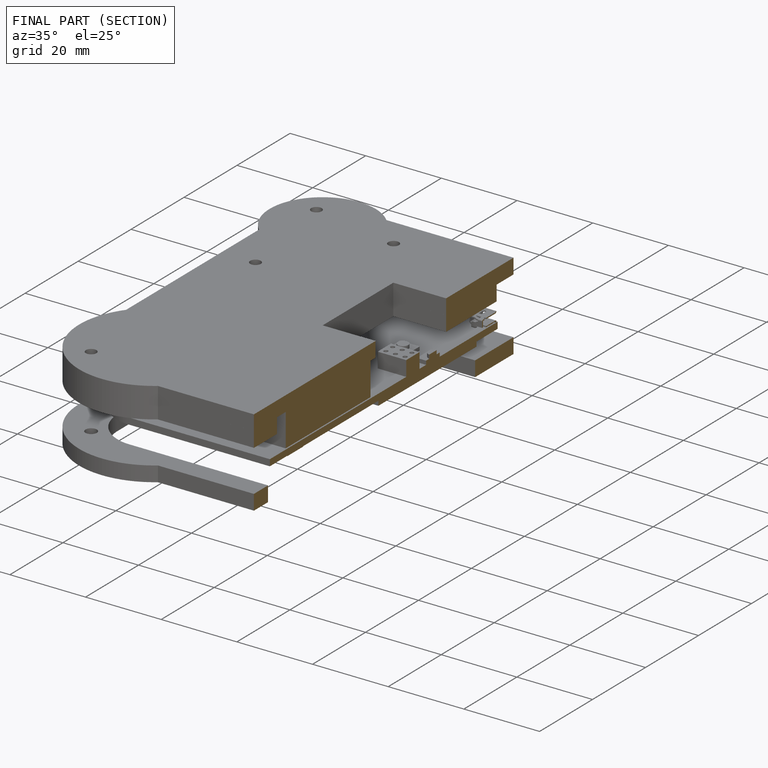
[diagram: finished part — half-section view (interior)]
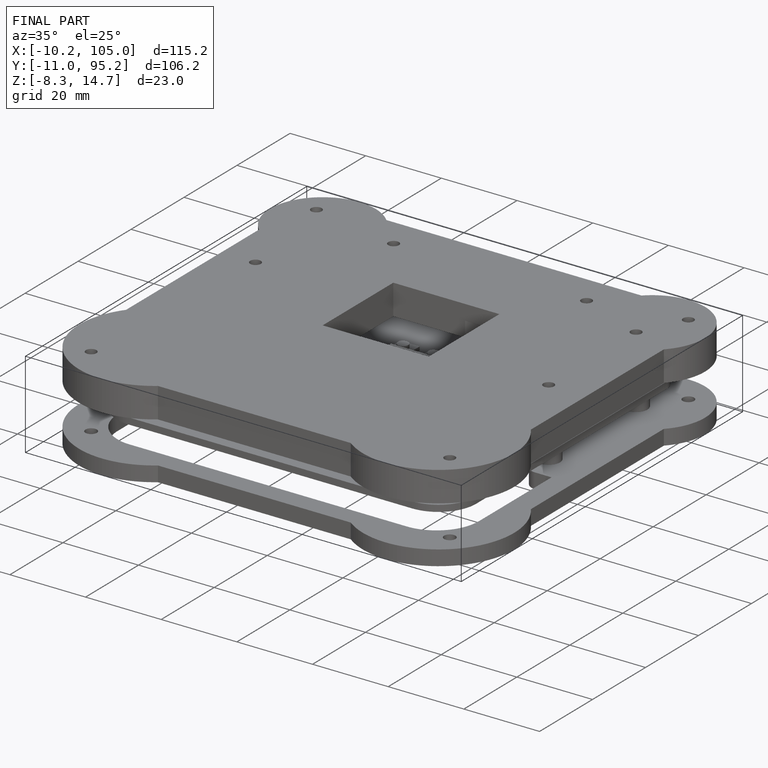
[diagram: finished part — iso view with bounding-box wireframe]
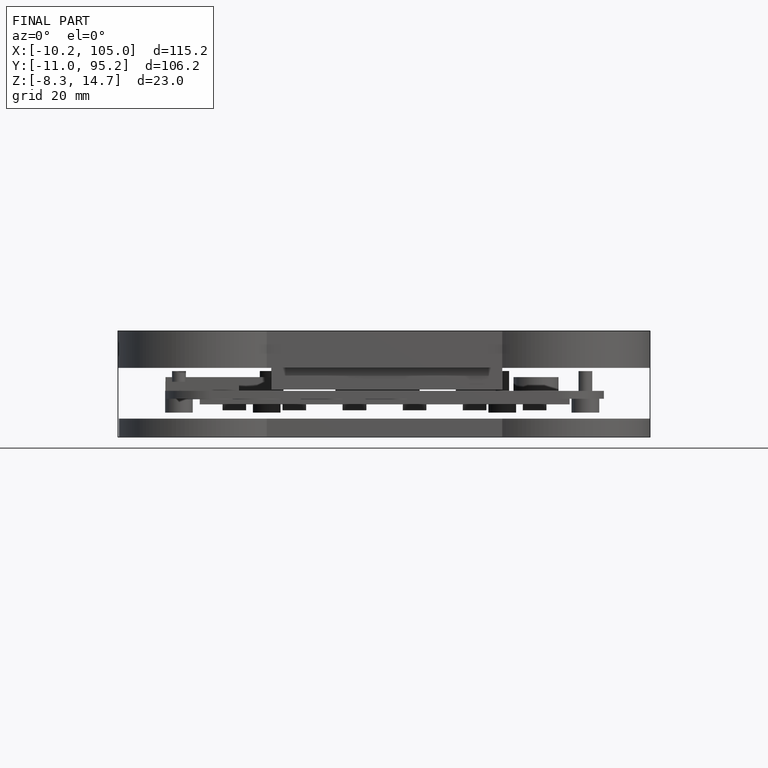
[diagram: finished part — front view with bounding-box wireframe]
